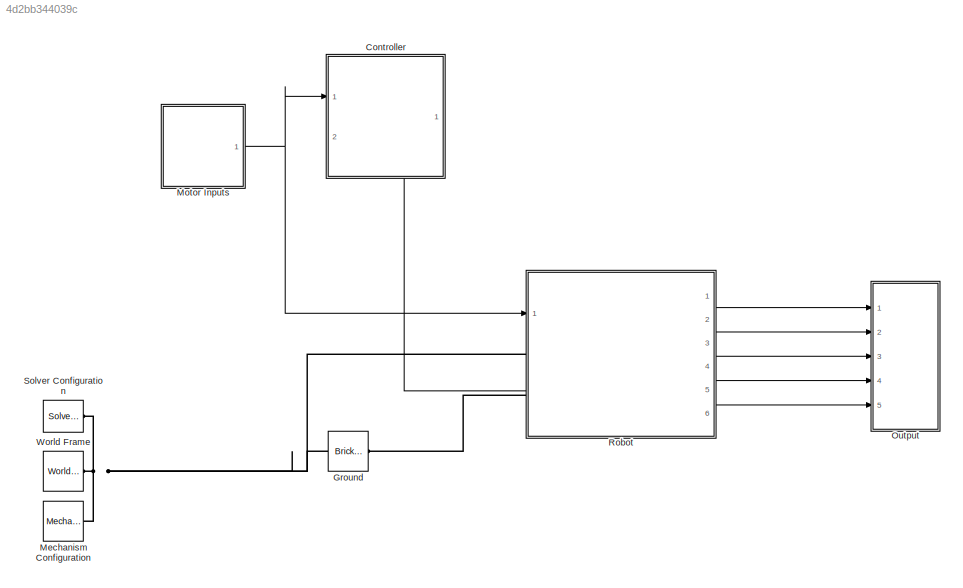
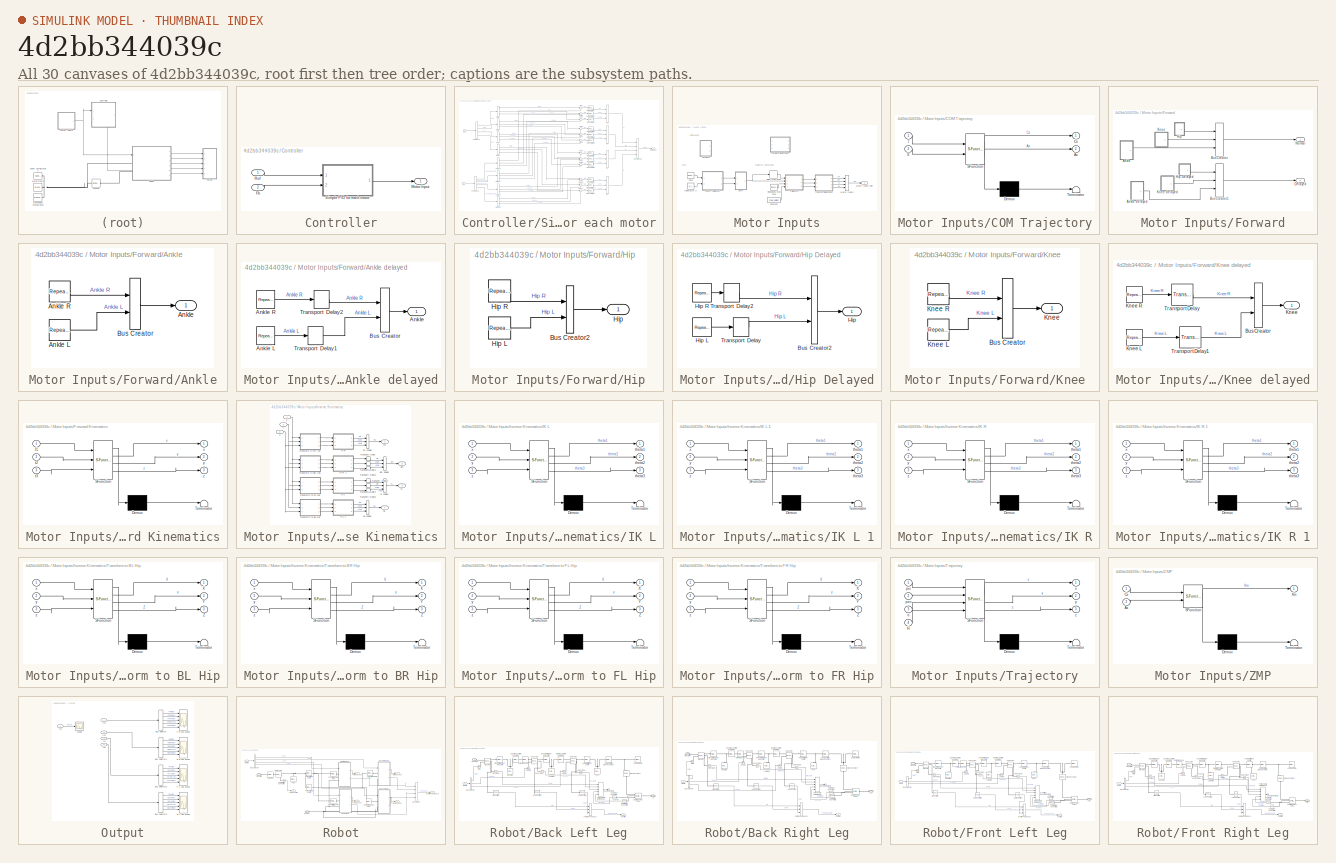
[diagram: thumbnail index - all 30 canvases of the model, root first then tree order]
MODEL slx_4d2bb344039c
KIND model
CONFIG AbsTol = auto
CONFIG EnableMultiTasking = on
CONFIG FixedStep = auto
CONFIG MaxStep = auto
CONFIG MinStep = auto
CONFIG PreLoadFcn = Parameters;
CONFIG RelTol = 1e-3
CONFIG SampleTimeConstraint = Unconstrained
CONFIG Solver = VariableStepAuto
CONFIG SolverName = VariableStepAuto
CONFIG StartTime = 0.0
CONFIG StopTime = 10.0
BLOCK [SubSystem] Controller
  Commented = on
  Ports = [2, 1]
  RequestExecContextInheritance = off
BLOCK [Inport] Controller/Fb
  Port = 2
BLOCK [Outport] Controller/Motor Input
BLOCK [Inport] Controller/Ref
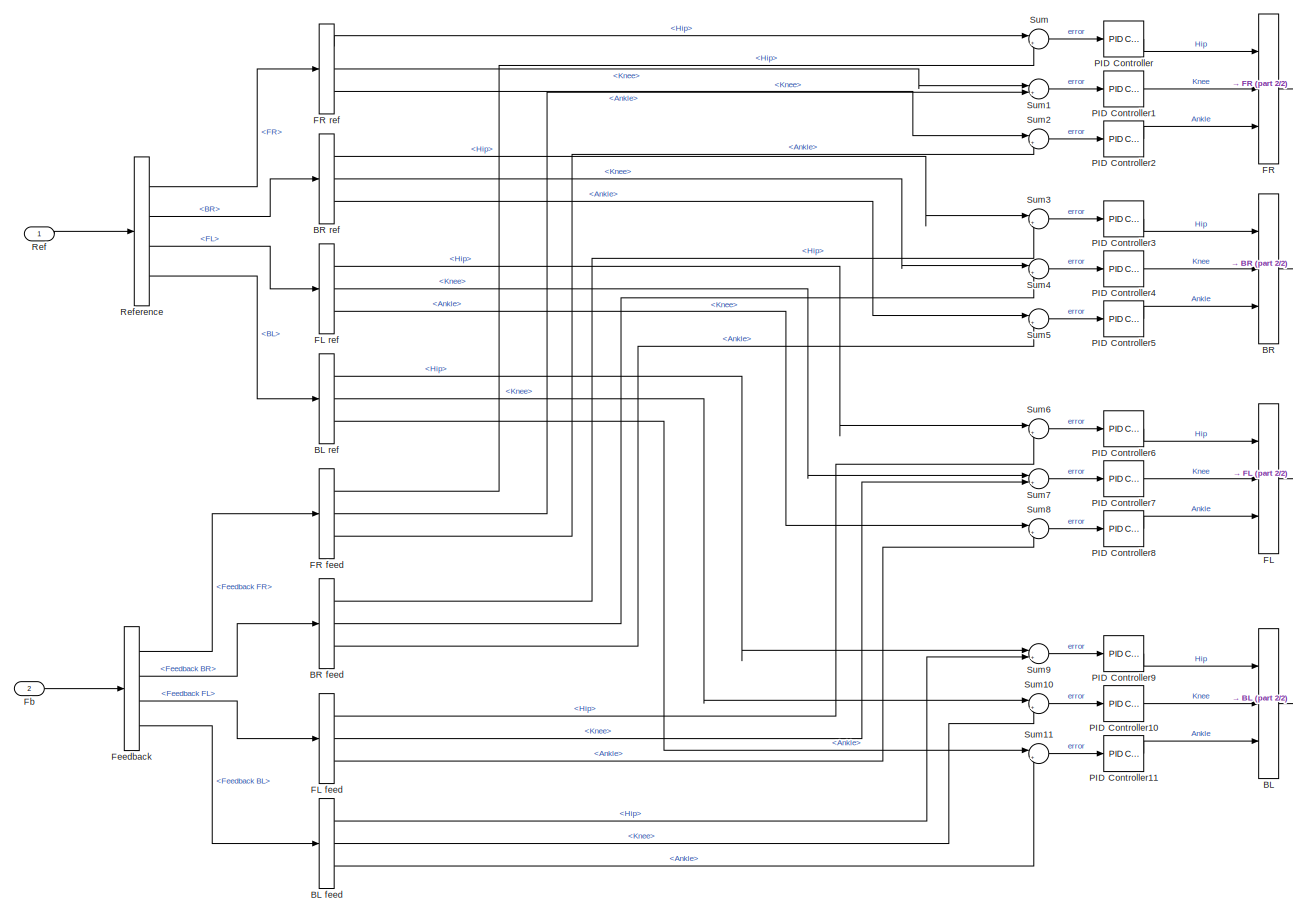
[diagram: Controller/Simple PID for each motor - part 1/2, most of the canvas]
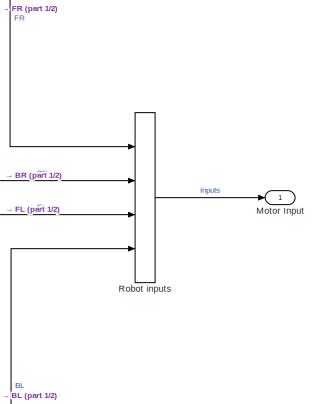
[diagram: Controller/Simple PID for each motor - part 2/2, middle right region]
BLOCK [SubSystem] Controller/Simple PID for each motor
  Ports = [2, 1]
  RequestExecContextInheritance = off
BLOCK [BusCreator] Controller/Simple PID for each motor/BL
  DisplayOption = bar
  InheritFromInputs = on
  Inputs = 3
  Ports = [3, 1]
BLOCK [BusSelector] Controller/Simple PID for each motor/BL feed
  OutputSignals = Hip,Knee,Ankle
  Ports = [1, 3]
BLOCK [BusSelector] Controller/Simple PID for each motor/BL ref
  OutputSignals = Hip,Knee,Ankle
  Ports = [1, 3]
BLOCK [BusCreator] Controller/Simple PID for each motor/BR
  DisplayOption = bar
  InheritFromInputs = on
  Inputs = 3
  Ports = [3, 1]
BLOCK [BusSelector] Controller/Simple PID for each motor/BR feed
  OutputSignals = Hip,Knee,Ankle
  Ports = [1, 3]
BLOCK [BusSelector] Controller/Simple PID for each motor/BR ref
  OutputSignals = Hip,Knee,Ankle
  Ports = [1, 3]
BLOCK [BusCreator] Controller/Simple PID for each motor/FL
  DisplayOption = bar
  InheritFromInputs = on
  Inputs = 3
  Ports = [3, 1]
BLOCK [BusSelector] Controller/Simple PID for each motor/FL feed
  OutputSignals = Hip,Knee,Ankle
  Ports = [1, 3]
BLOCK [BusSelector] Controller/Simple PID for each motor/FL ref
  OutputSignals = Hip,Knee,Ankle
  Ports = [1, 3]
BLOCK [BusCreator] Controller/Simple PID for each motor/FR
  DisplayOption = bar
  InheritFromInputs = on
  Inputs = 3
  Ports = [3, 1]
BLOCK [BusSelector] Controller/Simple PID for each motor/FR feed
  OutputSignals = Hip,Knee,Ankle
  Ports = [1, 3]
BLOCK [BusSelector] Controller/Simple PID for each motor/FR ref
  OutputSignals = Hip,Knee,Ankle
  Ports = [1, 3]
BLOCK [Inport] Controller/Simple PID for each motor/Fb
  Port = 2
BLOCK [BusSelector] Controller/Simple PID for each motor/Feedback
  OutputSignals = Feedback FR,Feedback BR,Feedback FL,Feedback BL
  Ports = [1, 4]
BLOCK [Outport] Controller/Simple PID for each motor/Motor Input
BLOCK [Reference] Controller/Simple PID for each motor/PID Controller  REF=simulink/Continuous/PID Controller
  Ports = [1, 1]
  SourceBlock = simulink/Continuous/PID Controller
  SourceProductBaseCode = SL
  SourceType = PID 1dof
BLOCK [Reference] Controller/Simple PID for each motor/PID Controller1  REF=simulink/Continuous/PID Controller
  Ports = [1, 1]
  SourceBlock = simulink/Continuous/PID Controller
  SourceProductBaseCode = SL
  SourceType = PID 1dof
BLOCK [Reference] Controller/Simple PID for each motor/PID Controller10  REF=simulink/Continuous/PID Controller
  Ports = [1, 1]
  SourceBlock = simulink/Continuous/PID Controller
  SourceProductBaseCode = SL
  SourceType = PID 1dof
BLOCK [Reference] Controller/Simple PID for each motor/PID Controller11  REF=simulink/Continuous/PID Controller
  Ports = [1, 1]
  SourceBlock = simulink/Continuous/PID Controller
  SourceProductBaseCode = SL
  SourceType = PID 1dof
BLOCK [Reference] Controller/Simple PID for each motor/PID Controller2  REF=simulink/Continuous/PID Controller
  Ports = [1, 1]
  SourceBlock = simulink/Continuous/PID Controller
  SourceProductBaseCode = SL
  SourceType = PID 1dof
BLOCK [Reference] Controller/Simple PID for each motor/PID Controller3  REF=simulink/Continuous/PID Controller
  Ports = [1, 1]
  SourceBlock = simulink/Continuous/PID Controller
  SourceProductBaseCode = SL
  SourceType = PID 1dof
BLOCK [Reference] Controller/Simple PID for each motor/PID Controller4  REF=simulink/Continuous/PID Controller
  Ports = [1, 1]
  SourceBlock = simulink/Continuous/PID Controller
  SourceProductBaseCode = SL
  SourceType = PID 1dof
BLOCK [Reference] Controller/Simple PID for each motor/PID Controller5  REF=simulink/Continuous/PID Controller
  Ports = [1, 1]
  SourceBlock = simulink/Continuous/PID Controller
  SourceProductBaseCode = SL
  SourceType = PID 1dof
BLOCK [Reference] Controller/Simple PID for each motor/PID Controller6  REF=simulink/Continuous/PID Controller
  Ports = [1, 1]
  SourceBlock = simulink/Continuous/PID Controller
  SourceProductBaseCode = SL
  SourceType = PID 1dof
BLOCK [Reference] Controller/Simple PID for each motor/PID Controller7  REF=simulink/Continuous/PID Controller
  Ports = [1, 1]
  SourceBlock = simulink/Continuous/PID Controller
  SourceProductBaseCode = SL
  SourceType = PID 1dof
BLOCK [Reference] Controller/Simple PID for each motor/PID Controller8  REF=simulink/Continuous/PID Controller
  Ports = [1, 1]
  SourceBlock = simulink/Continuous/PID Controller
  SourceProductBaseCode = SL
  SourceType = PID 1dof
BLOCK [Reference] Controller/Simple PID for each motor/PID Controller9  REF=simulink/Continuous/PID Controller
  Ports = [1, 1]
  SourceBlock = simulink/Continuous/PID Controller
  SourceProductBaseCode = SL
  SourceType = PID 1dof
BLOCK [Inport] Controller/Simple PID for each motor/Ref
BLOCK [BusSelector] Controller/Simple PID for each motor/Reference
  OutputSignals = FR,BR,FL,BL
  Ports = [1, 4]
BLOCK [BusCreator] Controller/Simple PID for each motor/Robot inputs
  DisplayOption = bar
  InheritFromInputs = on
  Inputs = 4
  Ports = [4, 1]
BLOCK [Sum] Controller/Simple PID for each motor/Sum
  Inputs = |+-
  Ports = [2, 1]
BLOCK [Sum] Controller/Simple PID for each motor/Sum1
  Inputs = |+-
  Ports = [2, 1]
BLOCK [Sum] Controller/Simple PID for each motor/Sum10
  Inputs = |+-
  Ports = [2, 1]
BLOCK [Sum] Controller/Simple PID for each motor/Sum11
  Inputs = |+-
  Ports = [2, 1]
BLOCK [Sum] Controller/Simple PID for each motor/Sum2
  Inputs = |+-
  Ports = [2, 1]
BLOCK [Sum] Controller/Simple PID for each motor/Sum3
  Inputs = |+-
  Ports = [2, 1]
BLOCK [Sum] Controller/Simple PID for each motor/Sum4
  Inputs = |+-
  Ports = [2, 1]
BLOCK [Sum] Controller/Simple PID for each motor/Sum5
  Inputs = |+-
  Ports = [2, 1]
BLOCK [Sum] Controller/Simple PID for each motor/Sum6
  Inputs = |+-
  Ports = [2, 1]
BLOCK [Sum] Controller/Simple PID for each motor/Sum7
  Inputs = |+-
  Ports = [2, 1]
BLOCK [Sum] Controller/Simple PID for each motor/Sum8
  Inputs = |+-
  Ports = [2, 1]
BLOCK [Sum] Controller/Simple PID for each motor/Sum9
  Inputs = |+-
  Ports = [2, 1]
BLOCK [Reference] Ground  REF=sm_lib/Body Elements/Brick Solid
  NameLocation = top
  Ports = [0, 0, 0, 0, 0, 1, 1]
  SourceBlock = sm_lib/Body Elements/Brick Solid
  SourceProductBaseCode = MS
  SourceType = Brick Solid
BLOCK [Reference] Mechanism Configuration  REF=sm_lib/Utilities/Mechanism
Configuration
  Ports = [0, 0, 0, 0, 0, 0, 1]
  SourceBlock = sm_lib/Utilities/Mechanism\nConfiguration
  SourceProductBaseCode = MS
  SourceType = Mechanism\nConfiguration
BLOCK [SubSystem] Motor Inputs
  Ports = [0, 1]
  RequestExecContextInheritance = off
BLOCK [SubSystem] Motor Inputs/COM Trajectory
  ErrorFcn = Stateflow.Translate.translate
  PermitHierarchicalResolution = ExplicitOnly
  Ports = [2, 2]
  RequestExecContextInheritance = off
  SFBlockType = MATLAB Function
  TreatAsAtomicUnit = on
BLOCK [Demux] Motor Inputs/COM Trajectory/ Demux 
  Outputs = 1
  Ports = [1, 1]
BLOCK [S-Function] Motor Inputs/COM Trajectory/ SFunction 
  EnableBusSupport = on
  FunctionName = sf_sfun
  PortCounts = [2 3]
  Ports = [2, 3]
  SFcnIsStateOwnerBlock = off
  SFunctionDeploymentMode = off
  Tag = Stateflow S-Function 4
BLOCK [Terminator] Motor Inputs/COM Trajectory/ Terminator 
BLOCK [Outport] Motor Inputs/COM Trajectory/Ax
  Port = 2
BLOCK [Outport] Motor Inputs/COM Trajectory/Cx
BLOCK [Inport] Motor Inputs/COM Trajectory/X
  Port = 2
BLOCK [Inport] Motor Inputs/COM Trajectory/t
BLOCK [Constant] Motor Inputs/Constant
  Value = step_height
BLOCK [Delay] Motor Inputs/Delay One Step
  DelayLength = 1
  InputPortMap = u0
  Ports = [1, 1]
BLOCK [SubSystem] Motor Inputs/Forward
  Commented = on
  Ports = [0, 2]
  RequestExecContextInheritance = off
BLOCK [SubSystem] Motor Inputs/Forward Kinematics
  Commented = on
  ErrorFcn = Stateflow.Translate.translate
  PermitHierarchicalResolution = ExplicitOnly
  Ports = [3, 3]
  RequestExecContextInheritance = off
  SFBlockType = MATLAB Function
  TreatAsAtomicUnit = on
BLOCK [Demux] Motor Inputs/Forward Kinematics/ Demux 
  Outputs = 1
  Ports = [1, 1]
BLOCK [S-Function] Motor Inputs/Forward Kinematics/ SFunction 
  EnableBusSupport = on
  FunctionName = sf_sfun
  PortCounts = [3 4]
  Ports = [3, 4]
  SFcnIsStateOwnerBlock = off
  SFunctionDeploymentMode = off
  Tag = Stateflow S-Function 12
BLOCK [Terminator] Motor Inputs/Forward Kinematics/ Terminator 
BLOCK [Inport] Motor Inputs/Forward Kinematics/t1
BLOCK [Inport] Motor Inputs/Forward Kinematics/t2
  Port = 2
BLOCK [Inport] Motor Inputs/Forward Kinematics/t3
  Port = 3
BLOCK [Outport] Motor Inputs/Forward Kinematics/x
BLOCK [Outport] Motor Inputs/Forward Kinematics/y
  Port = 2
BLOCK [Outport] Motor Inputs/Forward Kinematics/z
  Port = 3
BLOCK [SubSystem] Motor Inputs/Forward/Ankle
  Ports = [0, 1]
  RequestExecContextInheritance = off
BLOCK [SubSystem] Motor Inputs/Forward/Ankle delayed
  Ports = [0, 1]
  RequestExecContextInheritance = off
BLOCK [Outport] Motor Inputs/Forward/Ankle delayed/Ankle
BLOCK [Reference] Motor Inputs/Forward/Ankle delayed/Ankle L  REF=simulink/Sources/Repeating
Sequence
  Ports = [0, 1]
  SourceBlock = simulink/Sources/Repeating\nSequence
  SourceProductBaseCode = SL
  SourceType = Repeating table
BLOCK [Reference] Motor Inputs/Forward/Ankle delayed/Ankle R  REF=simulink/Sources/Repeating
Sequence
  Ports = [0, 1]
  SourceBlock = simulink/Sources/Repeating\nSequence
  SourceProductBaseCode = SL
  SourceType = Repeating table
BLOCK [BusCreator] Motor Inputs/Forward/Ankle delayed/Bus Creator
  DisplayOption = bar
  InheritFromInputs = on
  Inputs = 2
  Ports = [2, 1]
BLOCK [TransportDelay] Motor Inputs/Forward/Ankle delayed/Transport Delay1
  BufferSize = buffer
  DelayTime = gait_time/2
  InitialOutput = target3
  Ports = [1, 1]
BLOCK [TransportDelay] Motor Inputs/Forward/Ankle delayed/Transport Delay2
  BufferSize = buffer
  DelayTime = gait_time/2
  InitialOutput = target3r
  Ports = [1, 1]
BLOCK [Outport] Motor Inputs/Forward/Ankle/Ankle
BLOCK [Reference] Motor Inputs/Forward/Ankle/Ankle L  REF=simulink/Sources/Repeating
Sequence
  Ports = [0, 1]
  SourceBlock = simulink/Sources/Repeating\nSequence
  SourceProductBaseCode = SL
  SourceType = Repeating table
BLOCK [Reference] Motor Inputs/Forward/Ankle/Ankle R  REF=simulink/Sources/Repeating
Sequence
  Ports = [0, 1]
  SourceBlock = simulink/Sources/Repeating\nSequence
  SourceProductBaseCode = SL
  SourceType = Repeating table
BLOCK [BusCreator] Motor Inputs/Forward/Ankle/Bus Creator
  DisplayOption = bar
  InheritFromInputs = on
  Inputs = 2
  Ports = [2, 1]
BLOCK [BusCreator] Motor Inputs/Forward/Bus Creator
  DisplayOption = bar
  InheritFromInputs = on
  Inputs = 3
  Ports = [3, 1]
BLOCK [BusCreator] Motor Inputs/Forward/Bus Creator1
  DisplayOption = bar
  InheritFromInputs = on
  Inputs = 3
  Ports = [3, 1]
BLOCK [Outport] Motor Inputs/Forward/Delayed
  Port = 2
BLOCK [SubSystem] Motor Inputs/Forward/Hip
  Ports = [0, 1]
  RequestExecContextInheritance = off
BLOCK [SubSystem] Motor Inputs/Forward/Hip Delayed
  Ports = [0, 1]
  RequestExecContextInheritance = off
BLOCK [BusCreator] Motor Inputs/Forward/Hip Delayed/Bus Creator2
  DisplayOption = bar
  InheritFromInputs = on
  Inputs = 2
  Ports = [2, 1]
BLOCK [Outport] Motor Inputs/Forward/Hip Delayed/Hip
BLOCK [Reference] Motor Inputs/Forward/Hip Delayed/Hip L  REF=simulink/Sources/Repeating
Sequence
  Ports = [0, 1]
  SourceBlock = simulink/Sources/Repeating\nSequence
  SourceProductBaseCode = SL
  SourceType = Repeating table
BLOCK [Reference] Motor Inputs/Forward/Hip Delayed/Hip R  REF=simulink/Sources/Repeating
Sequence
  Ports = [0, 1]
  SourceBlock = simulink/Sources/Repeating\nSequence
  SourceProductBaseCode = SL
  SourceType = Repeating table
BLOCK [TransportDelay] Motor Inputs/Forward/Hip Delayed/Transport Delay
  BufferSize = buffer
  DelayTime = gait_time/2
  InitialOutput = target1
  Ports = [1, 1]
BLOCK [TransportDelay] Motor Inputs/Forward/Hip Delayed/Transport Delay2
  BufferSize = buffer
  DelayTime = gait_time/2
  InitialOutput = target1
  Ports = [1, 1]
BLOCK [BusCreator] Motor Inputs/Forward/Hip/Bus Creator2
  DisplayOption = bar
  InheritFromInputs = on
  Inputs = 2
  Ports = [2, 1]
BLOCK [Outport] Motor Inputs/Forward/Hip/Hip
BLOCK [Reference] Motor Inputs/Forward/Hip/Hip L  REF=simulink/Sources/Repeating
Sequence
  Ports = [0, 1]
  SourceBlock = simulink/Sources/Repeating\nSequence
  SourceProductBaseCode = SL
  SourceType = Repeating table
BLOCK [Reference] Motor Inputs/Forward/Hip/Hip R  REF=simulink/Sources/Repeating
Sequence
  Ports = [0, 1]
  SourceBlock = simulink/Sources/Repeating\nSequence
  SourceProductBaseCode = SL
  SourceType = Repeating table
BLOCK [SubSystem] Motor Inputs/Forward/Knee
  Ports = [0, 1]
  RequestExecContextInheritance = off
BLOCK [SubSystem] Motor Inputs/Forward/Knee delayed
  Ports = [0, 1]
  RequestExecContextInheritance = off
BLOCK [BusCreator] Motor Inputs/Forward/Knee delayed/Bus Creator
  DisplayOption = bar
  InheritFromInputs = on
  Inputs = 2
  Ports = [2, 1]
BLOCK [Outport] Motor Inputs/Forward/Knee delayed/Knee
BLOCK [Reference] Motor Inputs/Forward/Knee delayed/Knee L  REF=simulink/Sources/Repeating
Sequence
  Ports = [0, 1]
  SourceBlock = simulink/Sources/Repeating\nSequence
  SourceProductBaseCode = SL
  SourceType = Repeating table
BLOCK [Reference] Motor Inputs/Forward/Knee delayed/Knee R  REF=simulink/Sources/Repeating
Sequence
  Ports = [0, 1]
  SourceBlock = simulink/Sources/Repeating\nSequence
  SourceProductBaseCode = SL
  SourceType = Repeating table
BLOCK [TransportDelay] Motor Inputs/Forward/Knee delayed/Transport Delay
  BufferSize = buffer
  DelayTime = gait_time/2
  InitialOutput = target2r
  Ports = [1, 1]
BLOCK [TransportDelay] Motor Inputs/Forward/Knee delayed/Transport Delay1
  BufferSize = buffer
  DelayTime = gait_time/2
  InitialOutput = target2
  Ports = [1, 1]
BLOCK [BusCreator] Motor Inputs/Forward/Knee/Bus Creator
  DisplayOption = bar
  InheritFromInputs = on
  Inputs = 2
  Ports = [2, 1]
BLOCK [Outport] Motor Inputs/Forward/Knee/Knee
BLOCK [Reference] Motor Inputs/Forward/Knee/Knee L  REF=simulink/Sources/Repeating
Sequence
  Ports = [0, 1]
  SourceBlock = simulink/Sources/Repeating\nSequence
  SourceProductBaseCode = SL
  SourceType = Repeating table
BLOCK [Reference] Motor Inputs/Forward/Knee/Knee R  REF=simulink/Sources/Repeating
Sequence
  Ports = [0, 1]
  SourceBlock = simulink/Sources/Repeating\nSequence
  SourceProductBaseCode = SL
  SourceType = Repeating table
BLOCK [Outport] Motor Inputs/Forward/Normal
BLOCK [Constant] Motor Inputs/Initial COM X
  Value = Xc_i
BLOCK [SubSystem] Motor Inputs/Inverse Kinematics
  Ports = [3, 4]
  RequestExecContextInheritance = off
BLOCK [Outport] Motor Inputs/Inverse Kinematics/BL
  Port = 4
BLOCK [BusCreator] Motor Inputs/Inverse Kinematics/BL angles
  DisplayOption = bar
  InheritFromInputs = on
  Inputs = 3
  Ports = [3, 1]
BLOCK [Outport] Motor Inputs/Inverse Kinematics/BR
  Port = 2
BLOCK [BusCreator] Motor Inputs/Inverse Kinematics/BR angles
  DisplayOption = bar
  InheritFromInputs = on
  Inputs = 3
  Ports = [3, 1]
BLOCK [Outport] Motor Inputs/Inverse Kinematics/FL
  Port = 3
BLOCK [BusCreator] Motor Inputs/Inverse Kinematics/FL angles
  DisplayOption = bar
  InheritFromInputs = on
  Inputs = 3
  Ports = [3, 1]
BLOCK [Outport] Motor Inputs/Inverse Kinematics/FR
BLOCK [BusCreator] Motor Inputs/Inverse Kinematics/FR angles
  DisplayOption = bar
  InheritFromInputs = on
  Inputs = 3
  Ports = [3, 1]
BLOCK [SubSystem] Motor Inputs/Inverse Kinematics/IK L
  ErrorFcn = Stateflow.Translate.translate
  PermitHierarchicalResolution = ExplicitOnly
  Ports = [3, 3]
  RequestExecContextInheritance = off
  SFBlockType = MATLAB Function
  TreatAsAtomicUnit = on
BLOCK [SubSystem] Motor Inputs/Inverse Kinematics/IK L 1
  ErrorFcn = Stateflow.Translate.translate
  PermitHierarchicalResolution = ExplicitOnly
  Ports = [3, 3]
  RequestExecContextInheritance = off
  SFBlockType = MATLAB Function
  TreatAsAtomicUnit = on
BLOCK [Demux] Motor Inputs/Inverse Kinematics/IK L 1/ Demux 
  Outputs = 1
  Ports = [1, 1]
BLOCK [S-Function] Motor Inputs/Inverse Kinematics/IK L 1/ SFunction 
  EnableBusSupport = on
  FunctionName = sf_sfun
  PortCounts = [3 4]
  Ports = [3, 4]
  SFcnIsStateOwnerBlock = off
  SFunctionDeploymentMode = off
  Tag = Stateflow S-Function 10
BLOCK [Terminator] Motor Inputs/Inverse Kinematics/IK L 1/ Terminator 
BLOCK [Outport] Motor Inputs/Inverse Kinematics/IK L 1/theta1
BLOCK [Outport] Motor Inputs/Inverse Kinematics/IK L 1/theta2
  Port = 2
BLOCK [Outport] Motor Inputs/Inverse Kinematics/IK L 1/theta3
  Port = 3
BLOCK [Inport] Motor Inputs/Inverse Kinematics/IK L 1/x
BLOCK [Inport] Motor Inputs/Inverse Kinematics/IK L 1/y
  Port = 2
BLOCK [Inport] Motor Inputs/Inverse Kinematics/IK L 1/z
  Port = 3
BLOCK [Demux] Motor Inputs/Inverse Kinematics/IK L/ Demux 
  Outputs = 1
  Ports = [1, 1]
BLOCK [S-Function] Motor Inputs/Inverse Kinematics/IK L/ SFunction 
  EnableBusSupport = on
  FunctionName = sf_sfun
  PortCounts = [3 4]
  Ports = [3, 4]
  SFcnIsStateOwnerBlock = off
  SFunctionDeploymentMode = off
  Tag = Stateflow S-Function 7
BLOCK [Terminator] Motor Inputs/Inverse Kinematics/IK L/ Terminator 
BLOCK [Outport] Motor Inputs/Inverse Kinematics/IK L/theta1
BLOCK [Outport] Motor Inputs/Inverse Kinematics/IK L/theta2
  Port = 2
BLOCK [Outport] Motor Inputs/Inverse Kinematics/IK L/theta3
  Port = 3
BLOCK [Inport] Motor Inputs/Inverse Kinematics/IK L/x
BLOCK [Inport] Motor Inputs/Inverse Kinematics/IK L/y
  Port = 2
BLOCK [Inport] Motor Inputs/Inverse Kinematics/IK L/z
  Port = 3
BLOCK [SubSystem] Motor Inputs/Inverse Kinematics/IK R
  ErrorFcn = Stateflow.Translate.translate
  PermitHierarchicalResolution = ExplicitOnly
  Ports = [3, 3]
  RequestExecContextInheritance = off
  SFBlockType = MATLAB Function
  TreatAsAtomicUnit = on
BLOCK [SubSystem] Motor Inputs/Inverse Kinematics/IK R 1
  ErrorFcn = Stateflow.Translate.translate
  PermitHierarchicalResolution = ExplicitOnly
  Ports = [3, 3]
  RequestExecContextInheritance = off
  SFBlockType = MATLAB Function
  TreatAsAtomicUnit = on
BLOCK [Demux] Motor Inputs/Inverse Kinematics/IK R 1/ Demux 
  Outputs = 1
  Ports = [1, 1]
BLOCK [S-Function] Motor Inputs/Inverse Kinematics/IK R 1/ SFunction 
  EnableBusSupport = on
  FunctionName = sf_sfun
  PortCounts = [3 4]
  Ports = [3, 4]
  SFcnIsStateOwnerBlock = off
  SFunctionDeploymentMode = off
  Tag = Stateflow S-Function 8
BLOCK [Terminator] Motor Inputs/Inverse Kinematics/IK R 1/ Terminator 
BLOCK [Outport] Motor Inputs/Inverse Kinematics/IK R 1/theta1
BLOCK [Outport] Motor Inputs/Inverse Kinematics/IK R 1/theta2
  Port = 2
BLOCK [Outport] Motor Inputs/Inverse Kinematics/IK R 1/theta3
  Port = 3
BLOCK [Inport] Motor Inputs/Inverse Kinematics/IK R 1/x
BLOCK [Inport] Motor Inputs/Inverse Kinematics/IK R 1/y
  Port = 2
BLOCK [Inport] Motor Inputs/Inverse Kinematics/IK R 1/z
  Port = 3
BLOCK [Demux] Motor Inputs/Inverse Kinematics/IK R/ Demux 
  Outputs = 1
  Ports = [1, 1]
BLOCK [S-Function] Motor Inputs/Inverse Kinematics/IK R/ SFunction 
  EnableBusSupport = on
  FunctionName = sf_sfun
  PortCounts = [3 4]
  Ports = [3, 4]
  SFcnIsStateOwnerBlock = off
  SFunctionDeploymentMode = off
  Tag = Stateflow S-Function 1
BLOCK [Terminator] Motor Inputs/Inverse Kinematics/IK R/ Terminator 
BLOCK [Outport] Motor Inputs/Inverse Kinematics/IK R/theta1
BLOCK [Outport] Motor Inputs/Inverse Kinematics/IK R/theta2
  Port = 2
BLOCK [Outport] Motor Inputs/Inverse Kinematics/IK R/theta3
  Port = 3
BLOCK [Inport] Motor Inputs/Inverse Kinematics/IK R/x
BLOCK [Inport] Motor Inputs/Inverse Kinematics/IK R/y
  Port = 2
BLOCK [Inport] Motor Inputs/Inverse Kinematics/IK R/z
  Port = 3
BLOCK [SubSystem] Motor Inputs/Inverse Kinematics/Transform to BL Hip
  ErrorFcn = Stateflow.Translate.translate
  PermitHierarchicalResolution = ExplicitOnly
  Ports = [3, 3]
  RequestExecContextInheritance = off
  SFBlockType = MATLAB Function
  TreatAsAtomicUnit = on
BLOCK [Demux] Motor Inputs/Inverse Kinematics/Transform to BL Hip/ Demux 
  Outputs = 1
  Ports = [1, 1]
BLOCK [S-Function] Motor Inputs/Inverse Kinematics/Transform to BL Hip/ SFunction 
  EnableBusSupport = on
  FunctionName = sf_sfun
  PortCounts = [3 4]
  Ports = [3, 4]
  SFcnIsStateOwnerBlock = off
  SFunctionDeploymentMode = off
  Tag = Stateflow S-Function 11
BLOCK [Terminator] Motor Inputs/Inverse Kinematics/Transform to BL Hip/ Terminator 
BLOCK [Outport] Motor Inputs/Inverse Kinematics/Transform to BL Hip/X
BLOCK [Outport] Motor Inputs/Inverse Kinematics/Transform to BL Hip/Y
  Port = 2
BLOCK [Outport] Motor Inputs/Inverse Kinematics/Transform to BL Hip/Z
  Port = 3
BLOCK [Inport] Motor Inputs/Inverse Kinematics/Transform to BL Hip/x
BLOCK [Inport] Motor Inputs/Inverse Kinematics/Transform to BL Hip/y
  Port = 2
BLOCK [Inport] Motor Inputs/Inverse Kinematics/Transform to BL Hip/z
  Port = 3
BLOCK [SubSystem] Motor Inputs/Inverse Kinematics/Transform to BR Hip
  ErrorFcn = Stateflow.Translate.translate
  PermitHierarchicalResolution = ExplicitOnly
  Ports = [3, 3]
  RequestExecContextInheritance = off
  SFBlockType = MATLAB Function
  TreatAsAtomicUnit = on
BLOCK [Demux] Motor Inputs/Inverse Kinematics/Transform to BR Hip/ Demux 
  Outputs = 1
  Ports = [1, 1]
BLOCK [S-Function] Motor Inputs/Inverse Kinematics/Transform to BR Hip/ SFunction 
  EnableBusSupport = on
  FunctionName = sf_sfun
  PortCounts = [3 4]
  Ports = [3, 4]
  SFcnIsStateOwnerBlock = off
  SFunctionDeploymentMode = off
  Tag = Stateflow S-Function 9
BLOCK [Terminator] Motor Inputs/Inverse Kinematics/Transform to BR Hip/ Terminator 
BLOCK [Outport] Motor Inputs/Inverse Kinematics/Transform to BR Hip/X
BLOCK [Outport] Motor Inputs/Inverse Kinematics/Transform to BR Hip/Y
  Port = 2
BLOCK [Outport] Motor Inputs/Inverse Kinematics/Transform to BR Hip/Z
  Port = 3
BLOCK [Inport] Motor Inputs/Inverse Kinematics/Transform to BR Hip/x
BLOCK [Inport] Motor Inputs/Inverse Kinematics/Transform to BR Hip/y
  Port = 2
BLOCK [Inport] Motor Inputs/Inverse Kinematics/Transform to BR Hip/z
  Port = 3
BLOCK [SubSystem] Motor Inputs/Inverse Kinematics/Transform to FL Hip
  ErrorFcn = Stateflow.Translate.translate
  PermitHierarchicalResolution = ExplicitOnly
  Ports = [3, 3]
  RequestExecContextInheritance = off
  SFBlockType = MATLAB Function
  TreatAsAtomicUnit = on
BLOCK [Demux] Motor Inputs/Inverse Kinematics/Transform to FL Hip/ Demux 
  Outputs = 1
  Ports = [1, 1]
BLOCK [S-Function] Motor Inputs/Inverse Kinematics/Transform to FL Hip/ SFunction 
  EnableBusSupport = on
  FunctionName = sf_sfun
  PortCounts = [3 4]
  Ports = [3, 4]
  SFcnIsStateOwnerBlock = off
  SFunctionDeploymentMode = off
  Tag = Stateflow S-Function 6
BLOCK [Terminator] Motor Inputs/Inverse Kinematics/Transform to FL Hip/ Terminator 
BLOCK [Outport] Motor Inputs/Inverse Kinematics/Transform to FL Hip/X
BLOCK [Outport] Motor Inputs/Inverse Kinematics/Transform to FL Hip/Y
  Port = 2
BLOCK [Outport] Motor Inputs/Inverse Kinematics/Transform to FL Hip/Z
  Port = 3
BLOCK [Inport] Motor Inputs/Inverse Kinematics/Transform to FL Hip/x
BLOCK [Inport] Motor Inputs/Inverse Kinematics/Transform to FL Hip/y
  Port = 2
BLOCK [Inport] Motor Inputs/Inverse Kinematics/Transform to FL Hip/z
  Port = 3
BLOCK [SubSystem] Motor Inputs/Inverse Kinematics/Transform to FR Hip
  ErrorFcn = Stateflow.Translate.translate
  PermitHierarchicalResolution = ExplicitOnly
  Ports = [3, 3]
  RequestExecContextInheritance = off
  SFBlockType = MATLAB Function
  TreatAsAtomicUnit = on
BLOCK [Demux] Motor Inputs/Inverse Kinematics/Transform to FR Hip/ Demux 
  Outputs = 1
  Ports = [1, 1]
BLOCK [S-Function] Motor Inputs/Inverse Kinematics/Transform to FR Hip/ SFunction 
  EnableBusSupport = on
  FunctionName = sf_sfun
  PortCounts = [3 4]
  Ports = [3, 4]
  SFcnIsStateOwnerBlock = off
  SFunctionDeploymentMode = off
  Tag = Stateflow S-Function 5
BLOCK [Terminator] Motor Inputs/Inverse Kinematics/Transform to FR Hip/ Terminator 
BLOCK [Outport] Motor Inputs/Inverse Kinematics/Transform to FR Hip/X
BLOCK [Outport] Motor Inputs/Inverse Kinematics/Transform to FR Hip/Y
  Port = 2
BLOCK [Outport] Motor Inputs/Inverse Kinematics/Transform to FR Hip/Z
  Port = 3
BLOCK [Inport] Motor Inputs/Inverse Kinematics/Transform to FR Hip/x
BLOCK [Inport] Motor Inputs/Inverse Kinematics/Transform to FR Hip/y
  Port = 2
BLOCK [Inport] Motor Inputs/Inverse Kinematics/Transform to FR Hip/z
  Port = 3
BLOCK [TransportDelay] Motor Inputs/Inverse Kinematics/Transport Delay
  DelayTime = step_time
  InitialOutput = target1
  Ports = [1, 1]
BLOCK [TransportDelay] Motor Inputs/Inverse Kinematics/Transport Delay1
  DelayTime = step_time
  InitialOutput = target2r
  Ports = [1, 1]
BLOCK [TransportDelay] Motor Inputs/Inverse Kinematics/Transport Delay2
  DelayTime = step_time
  InitialOutput = target3r
  Ports = [1, 1]
BLOCK [TransportDelay] Motor Inputs/Inverse Kinematics/Transport Delay3
  DelayTime = step_time
  InitialOutput = target1
  Ports = [1, 1]
BLOCK [TransportDelay] Motor Inputs/Inverse Kinematics/Transport Delay4
  DelayTime = step_time
  InitialOutput = target2
  Ports = [1, 1]
BLOCK [TransportDelay] Motor Inputs/Inverse Kinematics/Transport Delay5
  DelayTime = step_time
  InitialOutput = target3
  Ports = [1, 1]
BLOCK [Inport] Motor Inputs/Inverse Kinematics/x
BLOCK [Inport] Motor Inputs/Inverse Kinematics/y
  Port = 2
BLOCK [Inport] Motor Inputs/Inverse Kinematics/z
  Port = 3
BLOCK [BusCreator] Motor Inputs/Motor Inputs
  DisplayOption = bar
  InheritFromInputs = on
  Inputs = 4
  Ports = [4, 1]
BLOCK [Outport] Motor Inputs/Motor Inputs Ref
BLOCK [Reference] Motor Inputs/Repeating step time  REF=simulink/Sources/Repeating
Sequence
  Ports = [0, 1]
  SourceBlock = simulink/Sources/Repeating\nSequence
  SourceProductBaseCode = SL
  SourceType = Repeating table
BLOCK [Reference] Motor Inputs/Time  REF=simulink/Sources/Repeating
Sequence
Stair
  Ports = [0, 1]
  SourceBlock = simulink/Sources/Repeating\nSequence\nStair
  SourceProductBaseCode = SL
  SourceType = Repeating Sequence Stair
BLOCK [SubSystem] Motor Inputs/Trajectory
  ErrorFcn = Stateflow.Translate.translate
  PermitHierarchicalResolution = ExplicitOnly
  Ports = [4, 3]
  RequestExecContextInheritance = off
  SFBlockType = MATLAB Function
  TreatAsAtomicUnit = on
BLOCK [Demux] Motor Inputs/Trajectory/ Demux 
  Outputs = 1
  Ports = [1, 1]
BLOCK [S-Function] Motor Inputs/Trajectory/ SFunction 
  EnableBusSupport = on
  FunctionName = sf_sfun
  PortCounts = [4 4]
  Ports = [4, 4]
  SFcnIsStateOwnerBlock = off
  SFunctionDeploymentMode = off
  Tag = Stateflow S-Function 2
BLOCK [Terminator] Motor Inputs/Trajectory/ Terminator 
BLOCK [Inport] Motor Inputs/Trajectory/H
  Port = 4
BLOCK [Inport] Motor Inputs/Trajectory/pxi
BLOCK [Inport] Motor Inputs/Trajectory/pxn
  Port = 2
BLOCK [Inport] Motor Inputs/Trajectory/ti
  Port = 3
BLOCK [Outport] Motor Inputs/Trajectory/x
BLOCK [Outport] Motor Inputs/Trajectory/y
  Port = 2
BLOCK [Outport] Motor Inputs/Trajectory/z
  Port = 3
BLOCK [SubSystem] Motor Inputs/ZMP
  ErrorFcn = Stateflow.Translate.translate
  PermitHierarchicalResolution = ExplicitOnly
  Ports = [2, 1]
  RequestExecContextInheritance = off
  SFBlockType = MATLAB Function
  TreatAsAtomicUnit = on
BLOCK [Demux] Motor Inputs/ZMP/ Demux 
  Outputs = 1
  Ports = [1, 1]
BLOCK [S-Function] Motor Inputs/ZMP/ SFunction 
  EnableBusSupport = on
  FunctionName = sf_sfun
  PortCounts = [2 2]
  Ports = [2, 2]
  SFcnIsStateOwnerBlock = off
  SFunctionDeploymentMode = off
  Tag = Stateflow S-Function 3
BLOCK [Terminator] Motor Inputs/ZMP/ Terminator 
BLOCK [Inport] Motor Inputs/ZMP/Ax
  Port = 2
BLOCK [Inport] Motor Inputs/ZMP/Cx
BLOCK [Outport] Motor Inputs/ZMP/Xm
BLOCK [SubSystem] Output
  Ports = [5]
  RequestExecContextInheritance = off
BLOCK [Scope] Output/B L Leg Scope
  Floating = off
  NumInputPorts = 5
  Ports = [5]
  ScopeSpecificationString = Simulink.scopes.TimeScopeBlockCfg('CurrentConfiguration', extmgr.ConfigurationSet(extmgr.Configuration('Core','General UI',true),extmgr.Configuration('Core','Source UI',true),extmgr.Configuration('Sources','WiredSimulink',true,'DataLoggingVariableName','ScopeData4'),extmgr.Configuration('Visuals','Time Domain',true,'SerializedDisplays',{struct('MinYLimReal','-1.9831','MaxYLimReal','2.33218','YLabe...<+1406ch>
BLOCK [Scope] Output/B R Leg Scope
  Floating = off
  NumInputPorts = 5
  Ports = [5]
  ScopeSpecificationString = Simulink.scopes.TimeScopeBlockCfg('CurrentConfiguration', extmgr.ConfigurationSet(extmgr.Configuration('Core','General UI',true),extmgr.Configuration('Core','Source UI',true),extmgr.Configuration('Sources','WiredSimulink',true,'DataLoggingVariableName','ScopeData2'),extmgr.Configuration('Visuals','Time Domain',true,'SerializedDisplays',{struct('MinYLimReal','-1.9831','MaxYLimReal','2.33218','YLabe...<+1406ch>
BLOCK [BusSelector] Output/Bus Selector
  OutputSignals = Torques & Force.F R Hip,Torques & Force.F R Knee,Torques & Force.F R Ankle,Torques & Force.F R Force,Torques & Force.F R Friction
  Ports = [1, 5]
BLOCK [BusSelector] Output/Bus Selector1
  OutputSignals = Torques & Force.B R Hip,Torques & Force.B R Knee,Torques & Force.B R Ankle,Torques & Force.B R Force,Torques & Force.B R Friction
  Ports = [1, 5]
BLOCK [BusSelector] Output/Bus Selector2
  OutputSignals = Torques & Force.F L Hip,Torques & Force.F L Knee,Torques & Force.F L Ankle,Torques & Force.F L Force,Torques & Force.F L Friction
  Ports = [1, 5]
BLOCK [BusSelector] Output/Bus Selector3
  OutputSignals = Torques & Force.B L Hip,Torques & Force.B L Knee,Torques & Force.B L Ankle,Torques & Force.B L Force,Torques & Force.B L Friction
  Ports = [1, 5]
BLOCK [Scope] Output/F L Leg Scope
  Floating = off
  NumInputPorts = 5
  Ports = [5]
  ScopeSpecificationString = Simulink.scopes.TimeScopeBlockCfg('CurrentConfiguration', extmgr.ConfigurationSet(extmgr.Configuration('Core','General UI',true),extmgr.Configuration('Core','Source UI',true),extmgr.Configuration('Sources','WiredSimulink',true,'DataLoggingVariableName','ScopeData3'),extmgr.Configuration('Visuals','Time Domain',true,'SerializedDisplays',{struct('MinYLimReal','-1.9831','MaxYLimReal','2.33218','YLabe...<+1385ch>
BLOCK [Scope] Output/F R Leg Scope
  Floating = off
  NumInputPorts = 5
  Ports = [5]
  ScopeSpecificationString = Simulink.scopes.TimeScopeBlockCfg('CurrentConfiguration', extmgr.ConfigurationSet(extmgr.Configuration('Core','General UI',true),extmgr.Configuration('Core','Source UI',true),extmgr.Configuration('Sources','WiredSimulink',true),extmgr.Configuration('Visuals','Time Domain',true,'SerializedDisplays',{struct('MinYLimReal','-1.9831','MaxYLimReal','2.33218','YLabelReal','','MinYLimMag','0.00000','MaxYL...<+1346ch>
BLOCK [Inport] Output/In1
  Port = 2
BLOCK [Inport] Output/In2
BLOCK [Inport] Output/In3
  Port = 3
BLOCK [Inport] Output/In4
  Port = 4
BLOCK [Inport] Output/In5
  Port = 5
BLOCK [Scope] Output/Scope
  Floating = off
  NumInputPorts = 1
  Ports = [1]
  ScopeSpecificationString = Simulink.scopes.TimeScopeBlockCfg('CurrentConfiguration', extmgr.ConfigurationSet(extmgr.Configuration('Core','General UI',true),extmgr.Configuration('Core','Source UI',true),extmgr.Configuration('Sources','WiredSimulink',true,'DataLoggingVariableName','ScopeData1'),extmgr.Configuration('Visuals','Time Domain',true),extmgr.Configuration('Tools','Plot Navigation',true),extmgr.Configuration('Tools',...<+40ch>
BLOCK [SubSystem] Robot
  PortSchema = {"entries":[{"content":{"sides":[{"content":{"connectorIds":["In1","LConn1","LConn2"]},"type":"ConnectorPlacement.EquallySpacedRectSide","uuid":"4635b272-c60d-4014-ab6c-106026f55e73"},{"content":{"connectorIds":["Out1","Out2","Out3","Out4","Out5"],"side":"RIGHT"},"type":"ConnectorPlacement.EquallySpacedRectSide","uuid":"ef84d230-707b-4f1f-8f8a-5325fbe6d1ad"},{"content":{"connectorIds":["Out6"],"si...<+294ch>
  Ports = [1, 6, 0, 0, 0, 2]
  RequestExecContextInheritance = off
BLOCK [Reference] Robot/6-DOF Joint  REF=sm_lib/Joints/6-DOF Joint
  Ports = [0, 0, 0, 0, 0, 1, 2]
  SourceBlock = sm_lib/Joints/6-DOF Joint
  SourceProductBaseCode = MS
  SourceType = 6-DOF Joint
BLOCK [Reference] Robot/B Centre to B L Hip Joint  REF=sm_lib/Frames and
Transforms/Rigid
Transform
  Ports = [0, 0, 0, 0, 0, 1, 1]
  SourceBlock = sm_lib/Frames and\nTransforms/Rigid\nTransform
  SourceProductBaseCode = MS
  SourceType = Rigid\nTransform
BLOCK [Reference] Robot/B Centre to B R Hip Joint  REF=sm_lib/Frames and
Transforms/Rigid
Transform
  Ports = [0, 0, 0, 0, 0, 1, 1]
  SourceBlock = sm_lib/Frames and\nTransforms/Rigid\nTransform
  SourceProductBaseCode = MS
  SourceType = Rigid\nTransform
BLOCK [Outport] Robot/B L leg scope
  Port = 5
BLOCK [Outport] Robot/B R leg scope
  Port = 3
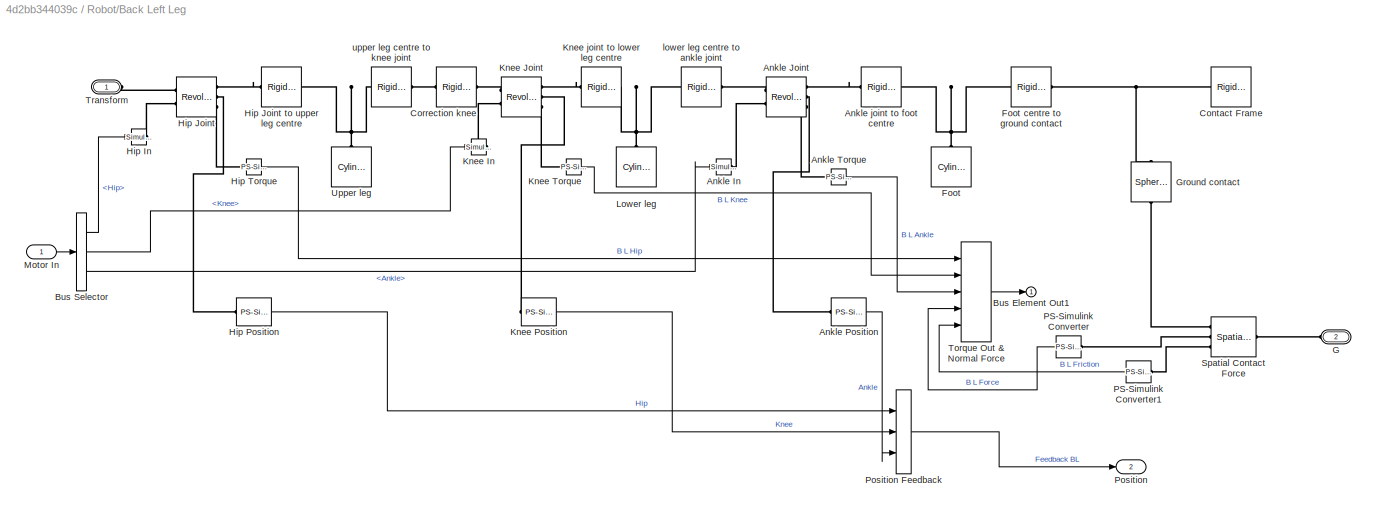
BLOCK [SubSystem] Robot/Back Left Leg
  Ports = [1, 2, 0, 0, 0, 2]
  RequestExecContextInheritance = off
BLOCK [Reference] Robot/Back Left Leg/Ankle In  REF=nesl_utility/Simulink-PS
Converter
  Ports = [1, 0, 0, 0, 0, 0, 1]
  SourceBlock = nesl_utility/Simulink-PS\nConverter
  SourceProductBaseCode = SS
  SourceType = Simulink-PS\nConverter
BLOCK [Reference] Robot/Back Left Leg/Ankle Joint  REF=sm_lib/Joints/Revolute Joint
  Ports = [0, 0, 0, 0, 0, 2, 3]
  SourceBlock = sm_lib/Joints/Revolute Joint
  SourceProductBaseCode = MS
  SourceType = Revolute Joint
BLOCK [Reference] Robot/Back Left Leg/Ankle Position  REF=nesl_utility/PS-Simulink
Converter
  Ports = [0, 1, 0, 0, 0, 1]
  SourceBlock = nesl_utility/PS-Simulink\nConverter
  SourceProductBaseCode = SS
  SourceType = PS-Simulink\nConverter
BLOCK [Reference] Robot/Back Left Leg/Ankle Torque  REF=nesl_utility/PS-Simulink
Converter
  Ports = [0, 1, 0, 0, 0, 1]
  SourceBlock = nesl_utility/PS-Simulink\nConverter
  SourceProductBaseCode = SS
  SourceType = PS-Simulink\nConverter
BLOCK [Reference] Robot/Back Left Leg/Ankle joint to foot centre  REF=sm_lib/Frames and
Transforms/Rigid
Transform
  Ports = [0, 0, 0, 0, 0, 1, 1]
  SourceBlock = sm_lib/Frames and\nTransforms/Rigid\nTransform
  SourceProductBaseCode = MS
  SourceType = Rigid\nTransform
BLOCK [Outport] Robot/Back Left Leg/Bus Element Out1
BLOCK [BusSelector] Robot/Back Left Leg/Bus Selector
  OutputSignals = Hip,Knee,Ankle
  Ports = [1, 3]
BLOCK [Reference] Robot/Back Left Leg/Contact Frame  REF=sm_lib/Frames and
Transforms/Rigid
Transform
  Commented = on
  Ports = [0, 0, 0, 0, 0, 1, 1]
  SourceBlock = sm_lib/Frames and\nTransforms/Rigid\nTransform
  SourceProductBaseCode = MS
  SourceType = Rigid\nTransform
BLOCK [Reference] Robot/Back Left Leg/Correction knee  REF=sm_lib/Frames and
Transforms/Rigid
Transform
  Ports = [0, 0, 0, 0, 0, 1, 1]
  SourceBlock = sm_lib/Frames and\nTransforms/Rigid\nTransform
  SourceProductBaseCode = MS
  SourceType = Rigid\nTransform
BLOCK [Reference] Robot/Back Left Leg/Foot  REF=sm_lib/Body Elements/Cylindrical Solid
  NameLocation = right
  Ports = [0, 0, 0, 0, 0, 0, 1]
  SourceBlock = sm_lib/Body Elements/Cylindrical Solid
  SourceProductBaseCode = MS
  SourceType = Cylindrical Solid
BLOCK [Reference] Robot/Back Left Leg/Foot centre to ground contact  REF=sm_lib/Frames and
Transforms/Rigid
Transform
  Ports = [0, 0, 0, 0, 0, 1, 1]
  SourceBlock = sm_lib/Frames and\nTransforms/Rigid\nTransform
  SourceProductBaseCode = MS
  SourceType = Rigid\nTransform
BLOCK [PMIOPort] Robot/Back Left Leg/G
  Port = 2
  Side = Left
BLOCK [Reference] Robot/Back Left Leg/Ground contact  REF=sm_lib/Body Elements/Spherical Solid
  NameLocation = right
  Ports = [0, 0, 0, 0, 0, 1, 1]
  SourceBlock = sm_lib/Body Elements/Spherical Solid
  SourceProductBaseCode = MS
  SourceType = Spherical Solid
BLOCK [Reference] Robot/Back Left Leg/Hip In  REF=nesl_utility/Simulink-PS
Converter
  Ports = [1, 0, 0, 0, 0, 0, 1]
  SourceBlock = nesl_utility/Simulink-PS\nConverter
  SourceProductBaseCode = SS
  SourceType = Simulink-PS\nConverter
BLOCK [Reference] Robot/Back Left Leg/Hip Joint  REF=sm_lib/Joints/Revolute Joint
  Ports = [0, 0, 0, 0, 0, 2, 3]
  SourceBlock = sm_lib/Joints/Revolute Joint
  SourceProductBaseCode = MS
  SourceType = Revolute Joint
BLOCK [Reference] Robot/Back Left Leg/Hip Joint to upper leg centre  REF=sm_lib/Frames and
Transforms/Rigid
Transform
  Ports = [0, 0, 0, 0, 0, 1, 1]
  SourceBlock = sm_lib/Frames and\nTransforms/Rigid\nTransform
  SourceProductBaseCode = MS
  SourceType = Rigid\nTransform
BLOCK [Reference] Robot/Back Left Leg/Hip Position  REF=nesl_utility/PS-Simulink
Converter
  Ports = [0, 1, 0, 0, 0, 1]
  SourceBlock = nesl_utility/PS-Simulink\nConverter
  SourceProductBaseCode = SS
  SourceType = PS-Simulink\nConverter
BLOCK [Reference] Robot/Back Left Leg/Hip Torque  REF=nesl_utility/PS-Simulink
Converter
  Ports = [0, 1, 0, 0, 0, 1]
  SourceBlock = nesl_utility/PS-Simulink\nConverter
  SourceProductBaseCode = SS
  SourceType = PS-Simulink\nConverter
BLOCK [Reference] Robot/Back Left Leg/Knee In  REF=nesl_utility/Simulink-PS
Converter
  Ports = [1, 0, 0, 0, 0, 0, 1]
  SourceBlock = nesl_utility/Simulink-PS\nConverter
  SourceProductBaseCode = SS
  SourceType = Simulink-PS\nConverter
BLOCK [Reference] Robot/Back Left Leg/Knee Joint  REF=sm_lib/Joints/Revolute Joint
  Ports = [0, 0, 0, 0, 0, 2, 3]
  SourceBlock = sm_lib/Joints/Revolute Joint
  SourceProductBaseCode = MS
  SourceType = Revolute Joint
BLOCK [Reference] Robot/Back Left Leg/Knee Position  REF=nesl_utility/PS-Simulink
Converter
  Ports = [0, 1, 0, 0, 0, 1]
  SourceBlock = nesl_utility/PS-Simulink\nConverter
  SourceProductBaseCode = SS
  SourceType = PS-Simulink\nConverter
BLOCK [Reference] Robot/Back Left Leg/Knee Torque  REF=nesl_utility/PS-Simulink
Converter
  Ports = [0, 1, 0, 0, 0, 1]
  SourceBlock = nesl_utility/PS-Simulink\nConverter
  SourceProductBaseCode = SS
  SourceType = PS-Simulink\nConverter
BLOCK [Reference] Robot/Back Left Leg/Knee joint to lower leg centre  REF=sm_lib/Frames and
Transforms/Rigid
Transform
  Ports = [0, 0, 0, 0, 0, 1, 1]
  SourceBlock = sm_lib/Frames and\nTransforms/Rigid\nTransform
  SourceProductBaseCode = MS
  SourceType = Rigid\nTransform
BLOCK [Reference] Robot/Back Left Leg/Lower leg  REF=sm_lib/Body Elements/Cylindrical Solid
  NameLocation = right
  Ports = [0, 0, 0, 0, 0, 0, 1]
  SourceBlock = sm_lib/Body Elements/Cylindrical Solid
  SourceProductBaseCode = MS
  SourceType = Cylindrical Solid
BLOCK [Inport] Robot/Back Left Leg/Motor In
BLOCK [Reference] Robot/Back Left Leg/PS-Simulink Converter  REF=nesl_utility/PS-Simulink
Converter
  Ports = [0, 1, 0, 0, 0, 1]
  SourceBlock = nesl_utility/PS-Simulink\nConverter
  SourceProductBaseCode = SS
  SourceType = PS-Simulink\nConverter
BLOCK [Reference] Robot/Back Left Leg/PS-Simulink Converter1  REF=nesl_utility/PS-Simulink
Converter
  Ports = [0, 1, 0, 0, 0, 1]
  SourceBlock = nesl_utility/PS-Simulink\nConverter
  SourceProductBaseCode = SS
  SourceType = PS-Simulink\nConverter
BLOCK [Outport] Robot/Back Left Leg/Position
  Port = 2
BLOCK [BusCreator] Robot/Back Left Leg/Position Feedback
  DisplayOption = bar
  InheritFromInputs = on
  Inputs = 3
  Ports = [3, 1]
BLOCK [Reference] Robot/Back Left Leg/Spatial Contact Force  REF=sm_lib/Forces and
Torques/Spatial
Contact Force
  Ports = [0, 0, 0, 0, 0, 1, 3]
  SourceBlock = sm_lib/Forces and\nTorques/Spatial\nContact Force
  SourceProductBaseCode = MS
  SourceType = Spatial\nContact Force
BLOCK [BusCreator] Robot/Back Left Leg/Torque Out & Normal Force
  DisplayOption = bar
  InheritFromInputs = on
  Inputs = 5
  Ports = [5, 1]
BLOCK [PMIOPort] Robot/Back Left Leg/Transform
  Side = Left
BLOCK [Reference] Robot/Back Left Leg/Upper leg  REF=sm_lib/Body Elements/Cylindrical Solid
  NameLocation = right
  Ports = [0, 0, 0, 0, 0, 0, 1]
  SourceBlock = sm_lib/Body Elements/Cylindrical Solid
  SourceProductBaseCode = MS
  SourceType = Cylindrical Solid
BLOCK [Reference] Robot/Back Left Leg/lower leg centre to ankle joint  REF=sm_lib/Frames and
Transforms/Rigid
Transform
  Ports = [0, 0, 0, 0, 0, 1, 1]
  SourceBlock = sm_lib/Frames and\nTransforms/Rigid\nTransform
  SourceProductBaseCode = MS
  SourceType = Rigid\nTransform
BLOCK [Reference] Robot/Back Left Leg/upper leg centre to knee joint  REF=sm_lib/Frames and
Transforms/Rigid
Transform
  Ports = [0, 0, 0, 0, 0, 1, 1]
  SourceBlock = sm_lib/Frames and\nTransforms/Rigid\nTransform
  SourceProductBaseCode = MS
  SourceType = Rigid\nTransform
BLOCK [SubSystem] Robot/Back Right Leg
  Ports = [1, 2, 0, 0, 0, 2]
  RequestExecContextInheritance = off
BLOCK [Reference] Robot/Back Right Leg/Ankle In  REF=nesl_utility/Simulink-PS
Converter
  Ports = [1, 0, 0, 0, 0, 0, 1]
  SourceBlock = nesl_utility/Simulink-PS\nConverter
  SourceProductBaseCode = SS
  SourceType = Simulink-PS\nConverter
BLOCK [Reference] Robot/Back Right Leg/Ankle Joint  REF=sm_lib/Joints/Revolute Joint
  Ports = [0, 0, 0, 0, 0, 2, 3]
  SourceBlock = sm_lib/Joints/Revolute Joint
  SourceProductBaseCode = MS
  SourceType = Revolute Joint
BLOCK [Reference] Robot/Back Right Leg/Ankle Position  REF=nesl_utility/PS-Simulink
Converter
  Ports = [0, 1, 0, 0, 0, 1]
  SourceBlock = nesl_utility/PS-Simulink\nConverter
  SourceProductBaseCode = SS
  SourceType = PS-Simulink\nConverter
BLOCK [Reference] Robot/Back Right Leg/Ankle Torque  REF=nesl_utility/PS-Simulink
Converter
  Ports = [0, 1, 0, 0, 0, 1]
  SourceBlock = nesl_utility/PS-Simulink\nConverter
  SourceProductBaseCode = SS
  SourceType = PS-Simulink\nConverter
BLOCK [Reference] Robot/Back Right Leg/Ankle joint to foot centre  REF=sm_lib/Frames and
Transforms/Rigid
Transform
  Ports = [0, 0, 0, 0, 0, 1, 1]
  SourceBlock = sm_lib/Frames and\nTransforms/Rigid\nTransform
  SourceProductBaseCode = MS
  SourceType = Rigid\nTransform
BLOCK [Outport] Robot/Back Right Leg/Bus Element Out1
BLOCK [BusSelector] Robot/Back Right Leg/Bus Selector
  OutputSignals = Hip,Knee,Ankle
  Ports = [1, 3]
BLOCK [Reference] Robot/Back Right Leg/Contact Frame  REF=sm_lib/Frames and
Transforms/Rigid
Transform
  Commented = on
  Ports = [0, 0, 0, 0, 0, 1, 1]
  SourceBlock = sm_lib/Frames and\nTransforms/Rigid\nTransform
  SourceProductBaseCode = MS
  SourceType = Rigid\nTransform
BLOCK [Reference] Robot/Back Right Leg/Correction knee  REF=sm_lib/Frames and
Transforms/Rigid
Transform
  Ports = [0, 0, 0, 0, 0, 1, 1]
  SourceBlock = sm_lib/Frames and\nTransforms/Rigid\nTransform
  SourceProductBaseCode = MS
  SourceType = Rigid\nTransform
BLOCK [Reference] Robot/Back Right Leg/Foot  REF=sm_lib/Body Elements/Cylindrical Solid
  NameLocation = right
  Ports = [0, 0, 0, 0, 0, 0, 1]
  SourceBlock = sm_lib/Body Elements/Cylindrical Solid
  SourceProductBaseCode = MS
  SourceType = Cylindrical Solid
BLOCK [Reference] Robot/Back Right Leg/Foot centre to ground contact  REF=sm_lib/Frames and
Transforms/Rigid
Transform
  Ports = [0, 0, 0, 0, 0, 1, 1]
  SourceBlock = sm_lib/Frames and\nTransforms/Rigid\nTransform
  SourceProductBaseCode = MS
  SourceType = Rigid\nTransform
BLOCK [PMIOPort] Robot/Back Right Leg/G
  Port = 2
  Side = Left
BLOCK [Reference] Robot/Back Right Leg/Ground contact  REF=sm_lib/Body Elements/Spherical Solid
  NameLocation = right
  Ports = [0, 0, 0, 0, 0, 1, 1]
  SourceBlock = sm_lib/Body Elements/Spherical Solid
  SourceProductBaseCode = MS
  SourceType = Spherical Solid
BLOCK [Reference] Robot/Back Right Leg/Hip In  REF=nesl_utility/Simulink-PS
Converter
  Ports = [1, 0, 0, 0, 0, 0, 1]
  SourceBlock = nesl_utility/Simulink-PS\nConverter
  SourceProductBaseCode = SS
  SourceType = Simulink-PS\nConverter
BLOCK [Reference] Robot/Back Right Leg/Hip Joint  REF=sm_lib/Joints/Revolute Joint
  Ports = [0, 0, 0, 0, 0, 2, 3]
  SourceBlock = sm_lib/Joints/Revolute Joint
  SourceProductBaseCode = MS
  SourceType = Revolute Joint
BLOCK [Reference] Robot/Back Right Leg/Hip Joint to upper leg centre  REF=sm_lib/Frames and
Transforms/Rigid
Transform
  Ports = [0, 0, 0, 0, 0, 1, 1]
  SourceBlock = sm_lib/Frames and\nTransforms/Rigid\nTransform
  SourceProductBaseCode = MS
  SourceType = Rigid\nTransform
BLOCK [Reference] Robot/Back Right Leg/Hip Position  REF=nesl_utility/PS-Simulink
Converter
  Ports = [0, 1, 0, 0, 0, 1]
  SourceBlock = nesl_utility/PS-Simulink\nConverter
  SourceProductBaseCode = SS
  SourceType = PS-Simulink\nConverter
BLOCK [Reference] Robot/Back Right Leg/Hip Torque  REF=nesl_utility/PS-Simulink
Converter
  Ports = [0, 1, 0, 0, 0, 1]
  SourceBlock = nesl_utility/PS-Simulink\nConverter
  SourceProductBaseCode = SS
  SourceType = PS-Simulink\nConverter
BLOCK [Reference] Robot/Back Right Leg/Knee In  REF=nesl_utility/Simulink-PS
Converter
  Ports = [1, 0, 0, 0, 0, 0, 1]
  SourceBlock = nesl_utility/Simulink-PS\nConverter
  SourceProductBaseCode = SS
  SourceType = Simulink-PS\nConverter
BLOCK [Reference] Robot/Back Right Leg/Knee Joint  REF=sm_lib/Joints/Revolute Joint
  Ports = [0, 0, 0, 0, 0, 2, 3]
  SourceBlock = sm_lib/Joints/Revolute Joint
  SourceProductBaseCode = MS
  SourceType = Revolute Joint
BLOCK [Reference] Robot/Back Right Leg/Knee Position  REF=nesl_utility/PS-Simulink
Converter
  Ports = [0, 1, 0, 0, 0, 1]
  SourceBlock = nesl_utility/PS-Simulink\nConverter
  SourceProductBaseCode = SS
  SourceType = PS-Simulink\nConverter
BLOCK [Reference] Robot/Back Right Leg/Knee Torque  REF=nesl_utility/PS-Simulink
Converter
  Ports = [0, 1, 0, 0, 0, 1]
  SourceBlock = nesl_utility/PS-Simulink\nConverter
  SourceProductBaseCode = SS
  SourceType = PS-Simulink\nConverter
BLOCK [Reference] Robot/Back Right Leg/Knee joint to lower leg centre  REF=sm_lib/Frames and
Transforms/Rigid
Transform
  Ports = [0, 0, 0, 0, 0, 1, 1]
  SourceBlock = sm_lib/Frames and\nTransforms/Rigid\nTransform
  SourceProductBaseCode = MS
  SourceType = Rigid\nTransform
BLOCK [Reference] Robot/Back Right Leg/Lower leg  REF=sm_lib/Body Elements/Cylindrical Solid
  NameLocation = right
  Ports = [0, 0, 0, 0, 0, 0, 1]
  SourceBlock = sm_lib/Body Elements/Cylindrical Solid
  SourceProductBaseCode = MS
  SourceType = Cylindrical Solid
BLOCK [Inport] Robot/Back Right Leg/Motor In
BLOCK [Reference] Robot/Back Right Leg/PS-Simulink Converter  REF=nesl_utility/PS-Simulink
Converter
  Ports = [0, 1, 0, 0, 0, 1]
  SourceBlock = nesl_utility/PS-Simulink\nConverter
  SourceProductBaseCode = SS
  SourceType = PS-Simulink\nConverter
BLOCK [Reference] Robot/Back Right Leg/PS-Simulink Converter1  REF=nesl_utility/PS-Simulink
Converter
  Ports = [0, 1, 0, 0, 0, 1]
  SourceBlock = nesl_utility/PS-Simulink\nConverter
  SourceProductBaseCode = SS
  SourceType = PS-Simulink\nConverter
BLOCK [Outport] Robot/Back Right Leg/Position
  Port = 2
BLOCK [BusCreator] Robot/Back Right Leg/Position Feedback
  DisplayOption = bar
  InheritFromInputs = on
  Inputs = 3
  Ports = [3, 1]
BLOCK [Reference] Robot/Back Right Leg/Spatial Contact Force  REF=sm_lib/Forces and
Torques/Spatial
Contact Force
  Ports = [0, 0, 0, 0, 0, 1, 3]
  SourceBlock = sm_lib/Forces and\nTorques/Spatial\nContact Force
  SourceProductBaseCode = MS
  SourceType = Spatial\nContact Force
BLOCK [BusCreator] Robot/Back Right Leg/Torque Out & Normal Force
  DisplayOption = bar
  InheritFromInputs = on
  Inputs = 5
  Ports = [5, 1]
BLOCK [PMIOPort] Robot/Back Right Leg/Transform
  Side = Left
BLOCK [Reference] Robot/Back Right Leg/Upper leg  REF=sm_lib/Body Elements/Cylindrical Solid
  NameLocation = right
  Ports = [0, 0, 0, 0, 0, 0, 1]
  SourceBlock = sm_lib/Body Elements/Cylindrical Solid
  SourceProductBaseCode = MS
  SourceType = Cylindrical Solid
BLOCK [Reference] Robot/Back Right Leg/lower leg centre to ankle joint  REF=sm_lib/Frames and
Transforms/Rigid
Transform
  Ports = [0, 0, 0, 0, 0, 1, 1]
  SourceBlock = sm_lib/Frames and\nTransforms/Rigid\nTransform
  SourceProductBaseCode = MS
  SourceType = Rigid\nTransform
BLOCK [Reference] Robot/Back Right Leg/upper leg centre to knee joint  REF=sm_lib/Frames and
Transforms/Rigid
Transform
  Ports = [0, 0, 0, 0, 0, 1, 1]
  SourceBlock = sm_lib/Frames and\nTransforms/Rigid\nTransform
  SourceProductBaseCode = MS
  SourceType = Rigid\nTransform
BLOCK [BusCreator] Robot/Bus Creator
  DisplayOption = bar
  InheritFromInputs = on
  Inputs = 4
  Ports = [4, 1]
BLOCK [BusSelector] Robot/Bus Selector
  OutputSignals = FR,BR,FL,BL
  Ports = [1, 4]
BLOCK [PMIOPort] Robot/Contact
  Port = 2
  Side = Left
BLOCK [Reference] Robot/F Centre to F L Hip Joint  REF=sm_lib/Frames and
Transforms/Rigid
Transform
  Ports = [0, 0, 0, 0, 0, 1, 1]
  SourceBlock = sm_lib/Frames and\nTransforms/Rigid\nTransform
  SourceProductBaseCode = MS
  SourceType = Rigid\nTransform
BLOCK [Reference] Robot/F Centre to F R Hip Joint  REF=sm_lib/Frames and
Transforms/Rigid
Transform
  Ports = [0, 0, 0, 0, 0, 1, 1]
  SourceBlock = sm_lib/Frames and\nTransforms/Rigid\nTransform
  SourceProductBaseCode = MS
  SourceType = Rigid\nTransform
BLOCK [Outport] Robot/F L leg scope
  Port = 4
BLOCK [Outport] Robot/F R leg scope
  Port = 2
BLOCK [SubSystem] Robot/Front Left Leg
  Ports = [1, 2, 0, 0, 0, 2]
  RequestExecContextInheritance = off
BLOCK [Reference] Robot/Front Left Leg/Ankle In  REF=nesl_utility/Simulink-PS
Converter
  Ports = [1, 0, 0, 0, 0, 0, 1]
  SourceBlock = nesl_utility/Simulink-PS\nConverter
  SourceProductBaseCode = SS
  SourceType = Simulink-PS\nConverter
BLOCK [Reference] Robot/Front Left Leg/Ankle Joint  REF=sm_lib/Joints/Revolute Joint
  Ports = [0, 0, 0, 0, 0, 2, 3]
  SourceBlock = sm_lib/Joints/Revolute Joint
  SourceProductBaseCode = MS
  SourceType = Revolute Joint
BLOCK [Reference] Robot/Front Left Leg/Ankle Position  REF=nesl_utility/PS-Simulink
Converter
  Ports = [0, 1, 0, 0, 0, 1]
  SourceBlock = nesl_utility/PS-Simulink\nConverter
  SourceProductBaseCode = SS
  SourceType = PS-Simulink\nConverter
BLOCK [Reference] Robot/Front Left Leg/Ankle Torque  REF=nesl_utility/PS-Simulink
Converter
  Ports = [0, 1, 0, 0, 0, 1]
  SourceBlock = nesl_utility/PS-Simulink\nConverter
  SourceProductBaseCode = SS
  SourceType = PS-Simulink\nConverter
BLOCK [Reference] Robot/Front Left Leg/Ankle joint to foot centre  REF=sm_lib/Frames and
Transforms/Rigid
Transform
  Ports = [0, 0, 0, 0, 0, 1, 1]
  SourceBlock = sm_lib/Frames and\nTransforms/Rigid\nTransform
  SourceProductBaseCode = MS
  SourceType = Rigid\nTransform
BLOCK [Outport] Robot/Front Left Leg/Bus Element Out1
BLOCK [BusSelector] Robot/Front Left Leg/Bus Selector
  OutputSignals = Hip,Knee,Ankle
  Ports = [1, 3]
BLOCK [Reference] Robot/Front Left Leg/Contact Frame  REF=sm_lib/Frames and
Transforms/Rigid
Transform
  Commented = on
  Ports = [0, 0, 0, 0, 0, 1, 1]
  SourceBlock = sm_lib/Frames and\nTransforms/Rigid\nTransform
  SourceProductBaseCode = MS
  SourceType = Rigid\nTransform
BLOCK [Reference] Robot/Front Left Leg/Correction knee  REF=sm_lib/Frames and
Transforms/Rigid
Transform
  Ports = [0, 0, 0, 0, 0, 1, 1]
  SourceBlock = sm_lib/Frames and\nTransforms/Rigid\nTransform
  SourceProductBaseCode = MS
  SourceType = Rigid\nTransform
BLOCK [Reference] Robot/Front Left Leg/Foot  REF=sm_lib/Body Elements/Cylindrical Solid
  NameLocation = right
  Ports = [0, 0, 0, 0, 0, 0, 1]
  SourceBlock = sm_lib/Body Elements/Cylindrical Solid
  SourceProductBaseCode = MS
  SourceType = Cylindrical Solid
BLOCK [Reference] Robot/Front Left Leg/Foot centre to ground contact  REF=sm_lib/Frames and
Transforms/Rigid
Transform
  Ports = [0, 0, 0, 0, 0, 1, 1]
  SourceBlock = sm_lib/Frames and\nTransforms/Rigid\nTransform
  SourceProductBaseCode = MS
  SourceType = Rigid\nTransform
BLOCK [PMIOPort] Robot/Front Left Leg/G
  Port = 2
  Side = Left
BLOCK [Reference] Robot/Front Left Leg/Ground contact  REF=sm_lib/Body Elements/Spherical Solid
  NameLocation = right
  Ports = [0, 0, 0, 0, 0, 1, 1]
  SourceBlock = sm_lib/Body Elements/Spherical Solid
  SourceProductBaseCode = MS
  SourceType = Spherical Solid
BLOCK [Reference] Robot/Front Left Leg/Hip In  REF=nesl_utility/Simulink-PS
Converter
  Ports = [1, 0, 0, 0, 0, 0, 1]
  SourceBlock = nesl_utility/Simulink-PS\nConverter
  SourceProductBaseCode = SS
  SourceType = Simulink-PS\nConverter
BLOCK [Reference] Robot/Front Left Leg/Hip Joint  REF=sm_lib/Joints/Revolute Joint
  Ports = [0, 0, 0, 0, 0, 2, 3]
  SourceBlock = sm_lib/Joints/Revolute Joint
  SourceProductBaseCode = MS
  SourceType = Revolute Joint
BLOCK [Reference] Robot/Front Left Leg/Hip Joint to upper leg centre  REF=sm_lib/Frames and
Transforms/Rigid
Transform
  Ports = [0, 0, 0, 0, 0, 1, 1]
  SourceBlock = sm_lib/Frames and\nTransforms/Rigid\nTransform
  SourceProductBaseCode = MS
  SourceType = Rigid\nTransform
BLOCK [Reference] Robot/Front Left Leg/Hip Position  REF=nesl_utility/PS-Simulink
Converter
  Ports = [0, 1, 0, 0, 0, 1]
  SourceBlock = nesl_utility/PS-Simulink\nConverter
  SourceProductBaseCode = SS
  SourceType = PS-Simulink\nConverter
BLOCK [Reference] Robot/Front Left Leg/Hip Torque  REF=nesl_utility/PS-Simulink
Converter
  Ports = [0, 1, 0, 0, 0, 1]
  SourceBlock = nesl_utility/PS-Simulink\nConverter
  SourceProductBaseCode = SS
  SourceType = PS-Simulink\nConverter
BLOCK [Reference] Robot/Front Left Leg/Knee In  REF=nesl_utility/Simulink-PS
Converter
  Ports = [1, 0, 0, 0, 0, 0, 1]
  SourceBlock = nesl_utility/Simulink-PS\nConverter
  SourceProductBaseCode = SS
  SourceType = Simulink-PS\nConverter
BLOCK [Reference] Robot/Front Left Leg/Knee Joint  REF=sm_lib/Joints/Revolute Joint
  Ports = [0, 0, 0, 0, 0, 2, 3]
  SourceBlock = sm_lib/Joints/Revolute Joint
  SourceProductBaseCode = MS
  SourceType = Revolute Joint
BLOCK [Reference] Robot/Front Left Leg/Knee Position  REF=nesl_utility/PS-Simulink
Converter
  Ports = [0, 1, 0, 0, 0, 1]
  SourceBlock = nesl_utility/PS-Simulink\nConverter
  SourceProductBaseCode = SS
  SourceType = PS-Simulink\nConverter
BLOCK [Reference] Robot/Front Left Leg/Knee Torque  REF=nesl_utility/PS-Simulink
Converter
  Ports = [0, 1, 0, 0, 0, 1]
  SourceBlock = nesl_utility/PS-Simulink\nConverter
  SourceProductBaseCode = SS
  SourceType = PS-Simulink\nConverter
BLOCK [Reference] Robot/Front Left Leg/Knee joint to lower leg centre  REF=sm_lib/Frames and
Transforms/Rigid
Transform
  Ports = [0, 0, 0, 0, 0, 1, 1]
  SourceBlock = sm_lib/Frames and\nTransforms/Rigid\nTransform
  SourceProductBaseCode = MS
  SourceType = Rigid\nTransform
BLOCK [Reference] Robot/Front Left Leg/Lower leg  REF=sm_lib/Body Elements/Cylindrical Solid
  NameLocation = right
  Ports = [0, 0, 0, 0, 0, 0, 1]
  SourceBlock = sm_lib/Body Elements/Cylindrical Solid
  SourceProductBaseCode = MS
  SourceType = Cylindrical Solid
BLOCK [Inport] Robot/Front Left Leg/Motor In
BLOCK [Reference] Robot/Front Left Leg/PS-Simulink Converter  REF=nesl_utility/PS-Simulink
Converter
  Ports = [0, 1, 0, 0, 0, 1]
  SourceBlock = nesl_utility/PS-Simulink\nConverter
  SourceProductBaseCode = SS
  SourceType = PS-Simulink\nConverter
BLOCK [Reference] Robot/Front Left Leg/PS-Simulink Converter1  REF=nesl_utility/PS-Simulink
Converter
  Ports = [0, 1, 0, 0, 0, 1]
  SourceBlock = nesl_utility/PS-Simulink\nConverter
  SourceProductBaseCode = SS
  SourceType = PS-Simulink\nConverter
BLOCK [Outport] Robot/Front Left Leg/Position
  Port = 2
BLOCK [BusCreator] Robot/Front Left Leg/Position Feedback
  DisplayOption = bar
  InheritFromInputs = on
  Inputs = 3
  Ports = [3, 1]
BLOCK [Reference] Robot/Front Left Leg/Spatial Contact Force  REF=sm_lib/Forces and
Torques/Spatial
Contact Force
  Ports = [0, 0, 0, 0, 0, 1, 3]
  SourceBlock = sm_lib/Forces and\nTorques/Spatial\nContact Force
  SourceProductBaseCode = MS
  SourceType = Spatial\nContact Force
BLOCK [BusCreator] Robot/Front Left Leg/Torque Out & Normal Force
  DisplayOption = bar
  InheritFromInputs = on
  Inputs = 5
  Ports = [5, 1]
BLOCK [PMIOPort] Robot/Front Left Leg/Transform
  Side = Left
BLOCK [Reference] Robot/Front Left Leg/Upper leg  REF=sm_lib/Body Elements/Cylindrical Solid
  NameLocation = right
  Ports = [0, 0, 0, 0, 0, 0, 1]
  SourceBlock = sm_lib/Body Elements/Cylindrical Solid
  SourceProductBaseCode = MS
  SourceType = Cylindrical Solid
BLOCK [Reference] Robot/Front Left Leg/lower leg centre to ankle joint  REF=sm_lib/Frames and
Transforms/Rigid
Transform
  Ports = [0, 0, 0, 0, 0, 1, 1]
  SourceBlock = sm_lib/Frames and\nTransforms/Rigid\nTransform
  SourceProductBaseCode = MS
  SourceType = Rigid\nTransform
BLOCK [Reference] Robot/Front Left Leg/upper leg centre to knee joint  REF=sm_lib/Frames and
Transforms/Rigid
Transform
  Ports = [0, 0, 0, 0, 0, 1, 1]
  SourceBlock = sm_lib/Frames and\nTransforms/Rigid\nTransform
  SourceProductBaseCode = MS
  SourceType = Rigid\nTransform
BLOCK [SubSystem] Robot/Front Right Leg
  Ports = [1, 2, 0, 0, 0, 2]
  RequestExecContextInheritance = off
BLOCK [Reference] Robot/Front Right Leg/Ankle In  REF=nesl_utility/Simulink-PS
Converter
  Ports = [1, 0, 0, 0, 0, 0, 1]
  SourceBlock = nesl_utility/Simulink-PS\nConverter
  SourceProductBaseCode = SS
  SourceType = Simulink-PS\nConverter
BLOCK [Reference] Robot/Front Right Leg/Ankle Joint  REF=sm_lib/Joints/Revolute Joint
  Ports = [0, 0, 0, 0, 0, 2, 3]
  SourceBlock = sm_lib/Joints/Revolute Joint
  SourceProductBaseCode = MS
  SourceType = Revolute Joint
BLOCK [Reference] Robot/Front Right Leg/Ankle Position  REF=nesl_utility/PS-Simulink
Converter
  Ports = [0, 1, 0, 0, 0, 1]
  SourceBlock = nesl_utility/PS-Simulink\nConverter
  SourceProductBaseCode = SS
  SourceType = PS-Simulink\nConverter
BLOCK [Reference] Robot/Front Right Leg/Ankle Torque  REF=nesl_utility/PS-Simulink
Converter
  Ports = [0, 1, 0, 0, 0, 1]
  SourceBlock = nesl_utility/PS-Simulink\nConverter
  SourceProductBaseCode = SS
  SourceType = PS-Simulink\nConverter
BLOCK [Reference] Robot/Front Right Leg/Ankle joint to foot centre  REF=sm_lib/Frames and
Transforms/Rigid
Transform
  Ports = [0, 0, 0, 0, 0, 1, 1]
  SourceBlock = sm_lib/Frames and\nTransforms/Rigid\nTransform
  SourceProductBaseCode = MS
  SourceType = Rigid\nTransform
BLOCK [Outport] Robot/Front Right Leg/Bus Element Out1
BLOCK [BusSelector] Robot/Front Right Leg/Bus Selector
  OutputSignals = Hip,Knee,Ankle
  Ports = [1, 3]
BLOCK [Reference] Robot/Front Right Leg/Contact Frame  REF=sm_lib/Frames and
Transforms/Rigid
Transform
  Commented = on
  Ports = [0, 0, 0, 0, 0, 1, 1]
  SourceBlock = sm_lib/Frames and\nTransforms/Rigid\nTransform
  SourceProductBaseCode = MS
  SourceType = Rigid\nTransform
BLOCK [Reference] Robot/Front Right Leg/Correction knee  REF=sm_lib/Frames and
Transforms/Rigid
Transform
  Ports = [0, 0, 0, 0, 0, 1, 1]
  SourceBlock = sm_lib/Frames and\nTransforms/Rigid\nTransform
  SourceProductBaseCode = MS
  SourceType = Rigid\nTransform
BLOCK [Reference] Robot/Front Right Leg/Foot  REF=sm_lib/Body Elements/Cylindrical Solid
  NameLocation = right
  Ports = [0, 0, 0, 0, 0, 0, 1]
  SourceBlock = sm_lib/Body Elements/Cylindrical Solid
  SourceProductBaseCode = MS
  SourceType = Cylindrical Solid
BLOCK [Reference] Robot/Front Right Leg/Foot centre to ground contact  REF=sm_lib/Frames and
Transforms/Rigid
Transform
  Ports = [0, 0, 0, 0, 0, 1, 1]
  SourceBlock = sm_lib/Frames and\nTransforms/Rigid\nTransform
  SourceProductBaseCode = MS
  SourceType = Rigid\nTransform
BLOCK [PMIOPort] Robot/Front Right Leg/G
  Port = 2
  Side = Left
BLOCK [Reference] Robot/Front Right Leg/Ground contact  REF=sm_lib/Body Elements/Spherical Solid
  NameLocation = right
  Ports = [0, 0, 0, 0, 0, 1, 1]
  SourceBlock = sm_lib/Body Elements/Spherical Solid
  SourceProductBaseCode = MS
  SourceType = Spherical Solid
BLOCK [Reference] Robot/Front Right Leg/Hip In  REF=nesl_utility/Simulink-PS
Converter
  Ports = [1, 0, 0, 0, 0, 0, 1]
  SourceBlock = nesl_utility/Simulink-PS\nConverter
  SourceProductBaseCode = SS
  SourceType = Simulink-PS\nConverter
BLOCK [Reference] Robot/Front Right Leg/Hip Joint  REF=sm_lib/Joints/Revolute Joint
  Ports = [0, 0, 0, 0, 0, 2, 3]
  SourceBlock = sm_lib/Joints/Revolute Joint
  SourceProductBaseCode = MS
  SourceType = Revolute Joint
BLOCK [Reference] Robot/Front Right Leg/Hip Joint to upper leg centre  REF=sm_lib/Frames and
Transforms/Rigid
Transform
  Ports = [0, 0, 0, 0, 0, 1, 1]
  SourceBlock = sm_lib/Frames and\nTransforms/Rigid\nTransform
  SourceProductBaseCode = MS
  SourceType = Rigid\nTransform
BLOCK [Reference] Robot/Front Right Leg/Hip Position  REF=nesl_utility/PS-Simulink
Converter
  Ports = [0, 1, 0, 0, 0, 1]
  SourceBlock = nesl_utility/PS-Simulink\nConverter
  SourceProductBaseCode = SS
  SourceType = PS-Simulink\nConverter
BLOCK [Reference] Robot/Front Right Leg/Hip Torque  REF=nesl_utility/PS-Simulink
Converter
  Ports = [0, 1, 0, 0, 0, 1]
  SourceBlock = nesl_utility/PS-Simulink\nConverter
  SourceProductBaseCode = SS
  SourceType = PS-Simulink\nConverter
BLOCK [Reference] Robot/Front Right Leg/Knee In  REF=nesl_utility/Simulink-PS
Converter
  Ports = [1, 0, 0, 0, 0, 0, 1]
  SourceBlock = nesl_utility/Simulink-PS\nConverter
  SourceProductBaseCode = SS
  SourceType = Simulink-PS\nConverter
BLOCK [Reference] Robot/Front Right Leg/Knee Joint  REF=sm_lib/Joints/Revolute Joint
  Ports = [0, 0, 0, 0, 0, 2, 3]
  SourceBlock = sm_lib/Joints/Revolute Joint
  SourceProductBaseCode = MS
  SourceType = Revolute Joint
BLOCK [Reference] Robot/Front Right Leg/Knee Position  REF=nesl_utility/PS-Simulink
Converter
  Ports = [0, 1, 0, 0, 0, 1]
  SourceBlock = nesl_utility/PS-Simulink\nConverter
  SourceProductBaseCode = SS
  SourceType = PS-Simulink\nConverter
BLOCK [Reference] Robot/Front Right Leg/Knee Torque  REF=nesl_utility/PS-Simulink
Converter
  Ports = [0, 1, 0, 0, 0, 1]
  SourceBlock = nesl_utility/PS-Simulink\nConverter
  SourceProductBaseCode = SS
  SourceType = PS-Simulink\nConverter
BLOCK [Reference] Robot/Front Right Leg/Knee joint to lower leg centre  REF=sm_lib/Frames and
Transforms/Rigid
Transform
  Ports = [0, 0, 0, 0, 0, 1, 1]
  SourceBlock = sm_lib/Frames and\nTransforms/Rigid\nTransform
  SourceProductBaseCode = MS
  SourceType = Rigid\nTransform
BLOCK [Reference] Robot/Front Right Leg/Lower leg  REF=sm_lib/Body Elements/Cylindrical Solid
  NameLocation = right
  Ports = [0, 0, 0, 0, 0, 0, 1]
  SourceBlock = sm_lib/Body Elements/Cylindrical Solid
  SourceProductBaseCode = MS
  SourceType = Cylindrical Solid
BLOCK [Inport] Robot/Front Right Leg/Motor In
BLOCK [Reference] Robot/Front Right Leg/PS-Simulink Converter  REF=nesl_utility/PS-Simulink
Converter
  Ports = [0, 1, 0, 0, 0, 1]
  SourceBlock = nesl_utility/PS-Simulink\nConverter
  SourceProductBaseCode = SS
  SourceType = PS-Simulink\nConverter
BLOCK [Reference] Robot/Front Right Leg/PS-Simulink Converter1  REF=nesl_utility/PS-Simulink
Converter
  Ports = [0, 1, 0, 0, 0, 1]
  SourceBlock = nesl_utility/PS-Simulink\nConverter
  SourceProductBaseCode = SS
  SourceType = PS-Simulink\nConverter
BLOCK [Outport] Robot/Front Right Leg/Position
  Port = 2
BLOCK [BusCreator] Robot/Front Right Leg/Position Feedback
  DisplayOption = bar
  InheritFromInputs = on
  Inputs = 3
  Ports = [3, 1]
BLOCK [Reference] Robot/Front Right Leg/Spatial Contact Force  REF=sm_lib/Forces and
Torques/Spatial
Contact Force
  Ports = [0, 0, 0, 0, 0, 1, 3]
  SourceBlock = sm_lib/Forces and\nTorques/Spatial\nContact Force
  SourceProductBaseCode = MS
  SourceType = Spatial\nContact Force
BLOCK [BusCreator] Robot/Front Right Leg/Torque Out & Normal Force
  DisplayOption = bar
  InheritFromInputs = on
  Inputs = 5
  Ports = [5, 1]
BLOCK [PMIOPort] Robot/Front Right Leg/Transform
  Side = Left
BLOCK [Reference] Robot/Front Right Leg/Upper leg  REF=sm_lib/Body Elements/Cylindrical Solid
  NameLocation = right
  Ports = [0, 0, 0, 0, 0, 0, 1]
  SourceBlock = sm_lib/Body Elements/Cylindrical Solid
  SourceProductBaseCode = MS
  SourceType = Cylindrical Solid
BLOCK [Reference] Robot/Front Right Leg/lower leg centre to ankle joint  REF=sm_lib/Frames and
Transforms/Rigid
Transform
  Ports = [0, 0, 0, 0, 0, 1, 1]
  SourceBlock = sm_lib/Frames and\nTransforms/Rigid\nTransform
  SourceProductBaseCode = MS
  SourceType = Rigid\nTransform
BLOCK [Reference] Robot/Front Right Leg/upper leg centre to knee joint  REF=sm_lib/Frames and
Transforms/Rigid
Transform
  Ports = [0, 0, 0, 0, 0, 1, 1]
  SourceBlock = sm_lib/Frames and\nTransforms/Rigid\nTransform
  SourceProductBaseCode = MS
  SourceType = Rigid\nTransform
BLOCK [Inport] Robot/Motor In
BLOCK [Reference] Robot/PS-Simulink Converter  REF=nesl_utility/PS-Simulink
Converter
  Ports = [0, 1, 0, 0, 0, 1]
  SourceBlock = nesl_utility/PS-Simulink\nConverter
  SourceProductBaseCode = SS
  SourceType = PS-Simulink\nConverter
BLOCK [Reference] Robot/Path to torso  REF=sm_lib/Frames and
Transforms/Rigid
Transform
  Ports = [0, 0, 0, 0, 0, 1, 1]
  SourceBlock = sm_lib/Frames and\nTransforms/Rigid\nTransform
  SourceProductBaseCode = MS
  SourceType = Rigid\nTransform
BLOCK [Outport] Robot/Position Feedback
  Port = 6
BLOCK [Reference] Robot/Torso  REF=sm_lib/Body Elements/Brick Solid
  NameLocation = right
  Ports = [0, 0, 0, 0, 0, 0, 1]
  SourceBlock = sm_lib/Body Elements/Brick Solid
  SourceProductBaseCode = MS
  SourceType = Brick Solid
BLOCK [Outport] Robot/Torso location
BLOCK [Reference] Robot/Torso mid to B Centre  REF=sm_lib/Frames and
Transforms/Rigid
Transform
  Ports = [0, 0, 0, 0, 0, 1, 1]
  SourceBlock = sm_lib/Frames and\nTransforms/Rigid\nTransform
  SourceProductBaseCode = MS
  SourceType = Rigid\nTransform
BLOCK [Reference] Robot/Torso mid to F Centre  REF=sm_lib/Frames and
Transforms/Rigid
Transform
  Ports = [0, 0, 0, 0, 0, 1, 1]
  SourceBlock = sm_lib/Frames and\nTransforms/Rigid\nTransform
  SourceProductBaseCode = MS
  SourceType = Rigid\nTransform
BLOCK [PMIOPort] Robot/Transform
  Side = Left
BLOCK [Reference] Solver Configuration  REF=nesl_utility/Solver
Configuration
  Ports = [0, 0, 0, 0, 0, 0, 1]
  SourceBlock = nesl_utility/Solver\nConfiguration
  SourceProductBaseCode = SS
  SourceType = Solver\nConfiguration
BLOCK [Reference] World Frame  REF=sm_lib/Frames and
Transforms/World Frame
  Ports = [0, 0, 0, 0, 0, 0, 1]
  SourceBlock = sm_lib/Frames and\nTransforms/World Frame
  SourceProductBaseCode = MS
  SourceType = World Frame
ANNOTATION Motor Inputs: Initial Scam
ANNOTATION Motor Inputs: Trajectory generation
ANNOTATION Motor Inputs: ZMP
LINE Controller/Fb:1 -> Controller/Simple PID for each motor:2
LINE Controller/Ref:1 -> Controller/Simple PID for each motor:1
LINE Controller/Simple PID for each motor/BL feed:1 -> Controller/Simple PID for each motor/Sum9:2
LINE Controller/Simple PID for each motor/BL feed:2 -> Controller/Simple PID for each motor/Sum10:2
LINE Controller/Simple PID for each motor/BL feed:3 -> Controller/Simple PID for each motor/Sum11:2
LINE Controller/Simple PID for each motor/BL ref:1 -> Controller/Simple PID for each motor/Sum9:1
LINE Controller/Simple PID for each motor/BL ref:2 -> Controller/Simple PID for each motor/Sum10:1
LINE Controller/Simple PID for each motor/BL ref:3 -> Controller/Simple PID for each motor/Sum11:1
LINE Controller/Simple PID for each motor/BL:1 -> Controller/Simple PID for each motor/Robot inputs:4
LINE Controller/Simple PID for each motor/BR feed:1 -> Controller/Simple PID for each motor/Sum3:2
LINE Controller/Simple PID for each motor/BR feed:2 -> Controller/Simple PID for each motor/Sum4:2
LINE Controller/Simple PID for each motor/BR feed:3 -> Controller/Simple PID for each motor/Sum5:2
LINE Controller/Simple PID for each motor/BR ref:1 -> Controller/Simple PID for each motor/Sum3:1
LINE Controller/Simple PID for each motor/BR ref:2 -> Controller/Simple PID for each motor/Sum4:1
LINE Controller/Simple PID for each motor/BR ref:3 -> Controller/Simple PID for each motor/Sum5:1
LINE Controller/Simple PID for each motor/BR:1 -> Controller/Simple PID for each motor/Robot inputs:2
LINE Controller/Simple PID for each motor/FL feed:1 -> Controller/Simple PID for each motor/Sum6:2
LINE Controller/Simple PID for each motor/FL feed:2 -> Controller/Simple PID for each motor/Sum7:2
LINE Controller/Simple PID for each motor/FL feed:3 -> Controller/Simple PID for each motor/Sum8:2
LINE Controller/Simple PID for each motor/FL ref:1 -> Controller/Simple PID for each motor/Sum6:1
LINE Controller/Simple PID for each motor/FL ref:2 -> Controller/Simple PID for each motor/Sum7:1
LINE Controller/Simple PID for each motor/FL ref:3 -> Controller/Simple PID for each motor/Sum8:1
LINE Controller/Simple PID for each motor/FL:1 -> Controller/Simple PID for each motor/Robot inputs:3
LINE Controller/Simple PID for each motor/FR feed:1 -> Controller/Simple PID for each motor/Sum:2
LINE Controller/Simple PID for each motor/FR feed:2 -> Controller/Simple PID for each motor/Sum1:2
LINE Controller/Simple PID for each motor/FR feed:3 -> Controller/Simple PID for each motor/Sum2:2
LINE Controller/Simple PID for each motor/FR ref:1 -> Controller/Simple PID for each motor/Sum:1
LINE Controller/Simple PID for each motor/FR ref:2 -> Controller/Simple PID for each motor/Sum1:1
LINE Controller/Simple PID for each motor/FR ref:3 -> Controller/Simple PID for each motor/Sum2:1
LINE Controller/Simple PID for each motor/FR:1 -> Controller/Simple PID for each motor/Robot inputs:1
LINE Controller/Simple PID for each motor/Fb:1 -> Controller/Simple PID for each motor/Feedback:1
LINE Controller/Simple PID for each motor/Feedback:1 -> Controller/Simple PID for each motor/FR feed:1
LINE Controller/Simple PID for each motor/Feedback:2 -> Controller/Simple PID for each motor/BR feed:1
LINE Controller/Simple PID for each motor/Feedback:3 -> Controller/Simple PID for each motor/FL feed:1
LINE Controller/Simple PID for each motor/Feedback:4 -> Controller/Simple PID for each motor/BL feed:1
LINE Controller/Simple PID for each motor/PID Controller10:1 -> Controller/Simple PID for each motor/BL:2
LINE Controller/Simple PID for each motor/PID Controller11:1 -> Controller/Simple PID for each motor/BL:3
LINE Controller/Simple PID for each motor/PID Controller1:1 -> Controller/Simple PID for each motor/FR:2
LINE Controller/Simple PID for each motor/PID Controller2:1 -> Controller/Simple PID for each motor/FR:3
LINE Controller/Simple PID for each motor/PID Controller3:1 -> Controller/Simple PID for each motor/BR:1
LINE Controller/Simple PID for each motor/PID Controller4:1 -> Controller/Simple PID for each motor/BR:2
LINE Controller/Simple PID for each motor/PID Controller5:1 -> Controller/Simple PID for each motor/BR:3
LINE Controller/Simple PID for each motor/PID Controller6:1 -> Controller/Simple PID for each motor/FL:1
LINE Controller/Simple PID for each motor/PID Controller7:1 -> Controller/Simple PID for each motor/FL:2
LINE Controller/Simple PID for each motor/PID Controller8:1 -> Controller/Simple PID for each motor/FL:3
LINE Controller/Simple PID for each motor/PID Controller9:1 -> Controller/Simple PID for each motor/BL:1
LINE Controller/Simple PID for each motor/PID Controller:1 -> Controller/Simple PID for each motor/FR:1
LINE Controller/Simple PID for each motor/Ref:1 -> Controller/Simple PID for each motor/Reference:1
LINE Controller/Simple PID for each motor/Reference:1 -> Controller/Simple PID for each motor/FR ref:1
LINE Controller/Simple PID for each motor/Reference:2 -> Controller/Simple PID for each motor/BR ref:1
LINE Controller/Simple PID for each motor/Reference:3 -> Controller/Simple PID for each motor/FL ref:1
LINE Controller/Simple PID for each motor/Reference:4 -> Controller/Simple PID for each motor/BL ref:1
LINE Controller/Simple PID for each motor/Robot inputs:1 -> Controller/Simple PID for each motor/Motor Input:1
LINE Controller/Simple PID for each motor/Sum10:1 -> Controller/Simple PID for each motor/PID Controller10:1
LINE Controller/Simple PID for each motor/Sum11:1 -> Controller/Simple PID for each motor/PID Controller11:1
LINE Controller/Simple PID for each motor/Sum1:1 -> Controller/Simple PID for each motor/PID Controller1:1
LINE Controller/Simple PID for each motor/Sum2:1 -> Controller/Simple PID for each motor/PID Controller2:1
LINE Controller/Simple PID for each motor/Sum3:1 -> Controller/Simple PID for each motor/PID Controller3:1
LINE Controller/Simple PID for each motor/Sum4:1 -> Controller/Simple PID for each motor/PID Controller4:1
LINE Controller/Simple PID for each motor/Sum5:1 -> Controller/Simple PID for each motor/PID Controller5:1
LINE Controller/Simple PID for each motor/Sum6:1 -> Controller/Simple PID for each motor/PID Controller6:1
LINE Controller/Simple PID for each motor/Sum7:1 -> Controller/Simple PID for each motor/PID Controller7:1
LINE Controller/Simple PID for each motor/Sum8:1 -> Controller/Simple PID for each motor/PID Controller8:1
LINE Controller/Simple PID for each motor/Sum9:1 -> Controller/Simple PID for each motor/PID Controller9:1
LINE Controller/Simple PID for each motor/Sum:1 -> Controller/Simple PID for each motor/PID Controller:1
LINE Controller/Simple PID for each motor:1 -> Controller/Motor Input:1
LINE Motor Inputs/COM Trajectory:1 -> Motor Inputs/ZMP:1
LINE Motor Inputs/COM Trajectory:2 -> Motor Inputs/ZMP:2
LINE Motor Inputs/Constant:1 -> Motor Inputs/Trajectory:4
LINE Motor Inputs/Delay One Step:1 -> Motor Inputs/Trajectory:1
LINE Motor Inputs/Forward/Ankle delayed/Ankle L:1 -> Motor Inputs/Forward/Ankle delayed/Transport Delay1:1
LINE Motor Inputs/Forward/Ankle delayed/Ankle R:1 -> Motor Inputs/Forward/Ankle delayed/Transport Delay2:1
LINE Motor Inputs/Forward/Ankle delayed/Bus Creator:1 -> Motor Inputs/Forward/Ankle delayed/Ankle:1
LINE Motor Inputs/Forward/Ankle delayed/Transport Delay1:1 -> Motor Inputs/Forward/Ankle delayed/Bus Creator:2
LINE Motor Inputs/Forward/Ankle delayed/Transport Delay2:1 -> Motor Inputs/Forward/Ankle delayed/Bus Creator:1
LINE Motor Inputs/Forward/Ankle delayed:1 -> Motor Inputs/Forward/Bus Creator1:3
LINE Motor Inputs/Forward/Ankle/Ankle L:1 -> Motor Inputs/Forward/Ankle/Bus Creator:2
LINE Motor Inputs/Forward/Ankle/Ankle R:1 -> Motor Inputs/Forward/Ankle/Bus Creator:1
LINE Motor Inputs/Forward/Ankle/Bus Creator:1 -> Motor Inputs/Forward/Ankle/Ankle:1
LINE Motor Inputs/Forward/Ankle:1 -> Motor Inputs/Forward/Bus Creator:3
LINE Motor Inputs/Forward/Bus Creator1:1 -> Motor Inputs/Forward/Delayed:1
LINE Motor Inputs/Forward/Bus Creator:1 -> Motor Inputs/Forward/Normal:1
LINE Motor Inputs/Forward/Hip Delayed/Bus Creator2:1 -> Motor Inputs/Forward/Hip Delayed/Hip:1
LINE Motor Inputs/Forward/Hip Delayed/Hip L:1 -> Motor Inputs/Forward/Hip Delayed/Transport Delay:1
LINE Motor Inputs/Forward/Hip Delayed/Hip R:1 -> Motor Inputs/Forward/Hip Delayed/Transport Delay2:1
LINE Motor Inputs/Forward/Hip Delayed/Transport Delay2:1 -> Motor Inputs/Forward/Hip Delayed/Bus Creator2:1
LINE Motor Inputs/Forward/Hip Delayed/Transport Delay:1 -> Motor Inputs/Forward/Hip Delayed/Bus Creator2:2
LINE Motor Inputs/Forward/Hip Delayed:1 -> Motor Inputs/Forward/Bus Creator1:1
LINE Motor Inputs/Forward/Hip/Bus Creator2:1 -> Motor Inputs/Forward/Hip/Hip:1
LINE Motor Inputs/Forward/Hip/Hip L:1 -> Motor Inputs/Forward/Hip/Bus Creator2:2
LINE Motor Inputs/Forward/Hip/Hip R:1 -> Motor Inputs/Forward/Hip/Bus Creator2:1
LINE Motor Inputs/Forward/Hip:1 -> Motor Inputs/Forward/Bus Creator:1
LINE Motor Inputs/Forward/Knee delayed/Bus Creator:1 -> Motor Inputs/Forward/Knee delayed/Knee:1
LINE Motor Inputs/Forward/Knee delayed/Knee L:1 -> Motor Inputs/Forward/Knee delayed/Transport Delay1:1
LINE Motor Inputs/Forward/Knee delayed/Knee R:1 -> Motor Inputs/Forward/Knee delayed/Transport Delay:1
LINE Motor Inputs/Forward/Knee delayed/Transport Delay1:1 -> Motor Inputs/Forward/Knee delayed/Bus Creator:2
LINE Motor Inputs/Forward/Knee delayed/Transport Delay:1 -> Motor Inputs/Forward/Knee delayed/Bus Creator:1
LINE Motor Inputs/Forward/Knee delayed:1 -> Motor Inputs/Forward/Bus Creator1:2
LINE Motor Inputs/Forward/Knee/Bus Creator:1 -> Motor Inputs/Forward/Knee/Knee:1
LINE Motor Inputs/Forward/Knee/Knee L:1 -> Motor Inputs/Forward/Knee/Bus Creator:2
LINE Motor Inputs/Forward/Knee/Knee R:1 -> Motor Inputs/Forward/Knee/Bus Creator:1
LINE Motor Inputs/Forward/Knee:1 -> Motor Inputs/Forward/Bus Creator:2
LINE Motor Inputs/Initial COM X:1 -> Motor Inputs/COM Trajectory:2
LINE Motor Inputs/Inverse Kinematics/BL angles:1 -> Motor Inputs/Inverse Kinematics/BL:1
LINE Motor Inputs/Inverse Kinematics/BR angles:1 -> Motor Inputs/Inverse Kinematics/BR:1
LINE Motor Inputs/Inverse Kinematics/FL angles:1 -> Motor Inputs/Inverse Kinematics/FL:1
LINE Motor Inputs/Inverse Kinematics/FR angles:1 -> Motor Inputs/Inverse Kinematics/FR:1
LINE Motor Inputs/Inverse Kinematics/IK L 1:1 -> Motor Inputs/Inverse Kinematics/BL angles:1
LINE Motor Inputs/Inverse Kinematics/IK L 1:2 -> Motor Inputs/Inverse Kinematics/BL angles:2
LINE Motor Inputs/Inverse Kinematics/IK L 1:3 -> Motor Inputs/Inverse Kinematics/BL angles:3
LINE Motor Inputs/Inverse Kinematics/IK L:1 -> Motor Inputs/Inverse Kinematics/Transport Delay3:1
LINE Motor Inputs/Inverse Kinematics/IK L:2 -> Motor Inputs/Inverse Kinematics/Transport Delay4:1
LINE Motor Inputs/Inverse Kinematics/IK L:3 -> Motor Inputs/Inverse Kinematics/Transport Delay5:1
LINE Motor Inputs/Inverse Kinematics/IK R 1:1 -> Motor Inputs/Inverse Kinematics/Transport Delay:1
LINE Motor Inputs/Inverse Kinematics/IK R 1:2 -> Motor Inputs/Inverse Kinematics/Transport Delay1:1
LINE Motor Inputs/Inverse Kinematics/IK R 1:3 -> Motor Inputs/Inverse Kinematics/Transport Delay2:1
LINE Motor Inputs/Inverse Kinematics/IK R:1 -> Motor Inputs/Inverse Kinematics/FR angles:1
LINE Motor Inputs/Inverse Kinematics/IK R:2 -> Motor Inputs/Inverse Kinematics/FR angles:2
LINE Motor Inputs/Inverse Kinematics/IK R:3 -> Motor Inputs/Inverse Kinematics/FR angles:3
LINE Motor Inputs/Inverse Kinematics/Transform to BL Hip:1 -> Motor Inputs/Inverse Kinematics/IK L 1:1
LINE Motor Inputs/Inverse Kinematics/Transform to BL Hip:2 -> Motor Inputs/Inverse Kinematics/IK L 1:2
LINE Motor Inputs/Inverse Kinematics/Transform to BL Hip:3 -> Motor Inputs/Inverse Kinematics/IK L 1:3
LINE Motor Inputs/Inverse Kinematics/Transform to BR Hip:1 -> Motor Inputs/Inverse Kinematics/IK R 1:1
LINE Motor Inputs/Inverse Kinematics/Transform to BR Hip:2 -> Motor Inputs/Inverse Kinematics/IK R 1:2
LINE Motor Inputs/Inverse Kinematics/Transform to BR Hip:3 -> Motor Inputs/Inverse Kinematics/IK R 1:3
LINE Motor Inputs/Inverse Kinematics/Transform to FL Hip:1 -> Motor Inputs/Inverse Kinematics/IK L:1
LINE Motor Inputs/Inverse Kinematics/Transform to FL Hip:2 -> Motor Inputs/Inverse Kinematics/IK L:2
LINE Motor Inputs/Inverse Kinematics/Transform to FL Hip:3 -> Motor Inputs/Inverse Kinematics/IK L:3
LINE Motor Inputs/Inverse Kinematics/Transform to FR Hip:1 -> Motor Inputs/Inverse Kinematics/IK R:1
LINE Motor Inputs/Inverse Kinematics/Transform to FR Hip:2 -> Motor Inputs/Inverse Kinematics/IK R:2
LINE Motor Inputs/Inverse Kinematics/Transform to FR Hip:3 -> Motor Inputs/Inverse Kinematics/IK R:3
LINE Motor Inputs/Inverse Kinematics/Transport Delay1:1 -> Motor Inputs/Inverse Kinematics/BR angles:2
LINE Motor Inputs/Inverse Kinematics/Transport Delay2:1 -> Motor Inputs/Inverse Kinematics/BR angles:3
LINE Motor Inputs/Inverse Kinematics/Transport Delay3:1 -> Motor Inputs/Inverse Kinematics/FL angles:1
LINE Motor Inputs/Inverse Kinematics/Transport Delay4:1 -> Motor Inputs/Inverse Kinematics/FL angles:2
LINE Motor Inputs/Inverse Kinematics/Transport Delay5:1 -> Motor Inputs/Inverse Kinematics/FL angles:3
LINE Motor Inputs/Inverse Kinematics/Transport Delay:1 -> Motor Inputs/Inverse Kinematics/BR angles:1
NET Motor Inputs/Inverse Kinematics/x:1 -> Motor Inputs/Inverse Kinematics/Transform to BL Hip:1, Motor Inputs/Inverse Kinematics/Transform to BR Hip:1, Motor Inputs/Inverse Kinematics/Transform to FL Hip:1, Motor Inputs/Inverse Kinematics/Transform to FR Hip:1
NET Motor Inputs/Inverse Kinematics/y:1 -> Motor Inputs/Inverse Kinematics/Transform to BL Hip:2, Motor Inputs/Inverse Kinematics/Transform to BR Hip:2, Motor Inputs/Inverse Kinematics/Transform to FL Hip:2, Motor Inputs/Inverse Kinematics/Transform to FR Hip:2
NET Motor Inputs/Inverse Kinematics/z:1 -> Motor Inputs/Inverse Kinematics/Transform to BL Hip:3, Motor Inputs/Inverse Kinematics/Transform to BR Hip:3, Motor Inputs/Inverse Kinematics/Transform to FL Hip:3, Motor Inputs/Inverse Kinematics/Transform to FR Hip:3
LINE Motor Inputs/Inverse Kinematics:1 -> Motor Inputs/Motor Inputs:1
LINE Motor Inputs/Inverse Kinematics:2 -> Motor Inputs/Motor Inputs:2
LINE Motor Inputs/Inverse Kinematics:3 -> Motor Inputs/Motor Inputs:3
LINE Motor Inputs/Inverse Kinematics:4 -> Motor Inputs/Motor Inputs:4
LINE Motor Inputs/Motor Inputs:1 -> Motor Inputs/Motor Inputs Ref:1
LINE Motor Inputs/Repeating step time:1 -> Motor Inputs/Trajectory:3
LINE Motor Inputs/Time:1 -> Motor Inputs/COM Trajectory:1
LINE Motor Inputs/Trajectory:1 -> Motor Inputs/Inverse Kinematics:1
LINE Motor Inputs/Trajectory:2 -> Motor Inputs/Inverse Kinematics:2
LINE Motor Inputs/Trajectory:3 -> Motor Inputs/Inverse Kinematics:3
NET Motor Inputs/ZMP:1 -> Motor Inputs/Delay One Step:1, Motor Inputs/Trajectory:2
NET Motor Inputs:1 -> Controller:1, Robot:1
LINE Output/Bus Selector1:1 -> Output/B R Leg Scope:1
LINE Output/Bus Selector1:2 -> Output/B R Leg Scope:2
LINE Output/Bus Selector1:3 -> Output/B R Leg Scope:3
LINE Output/Bus Selector1:4 -> Output/B R Leg Scope:4
LINE Output/Bus Selector1:5 -> Output/B R Leg Scope:5
LINE Output/Bus Selector2:1 -> Output/F L Leg Scope:1
LINE Output/Bus Selector2:2 -> Output/F L Leg Scope:2
LINE Output/Bus Selector2:3 -> Output/F L Leg Scope:3
LINE Output/Bus Selector2:4 -> Output/F L Leg Scope:4
LINE Output/Bus Selector2:5 -> Output/F L Leg Scope:5
LINE Output/Bus Selector3:1 -> Output/B L Leg Scope:1
LINE Output/Bus Selector3:2 -> Output/B L Leg Scope:2
LINE Output/Bus Selector3:3 -> Output/B L Leg Scope:3
LINE Output/Bus Selector3:4 -> Output/B L Leg Scope:4
LINE Output/Bus Selector3:5 -> Output/B L Leg Scope:5
LINE Output/Bus Selector:1 -> Output/F R Leg Scope:1
LINE Output/Bus Selector:2 -> Output/F R Leg Scope:2
LINE Output/Bus Selector:3 -> Output/F R Leg Scope:3
LINE Output/Bus Selector:4 -> Output/F R Leg Scope:4
LINE Output/Bus Selector:5 -> Output/F R Leg Scope:5
LINE Output/In1:1 -> Output/Bus Selector:1
LINE Output/In2:1 -> Output/Scope:1
LINE Output/In3:1 -> Output/Bus Selector1:1
LINE Output/In4:1 -> Output/Bus Selector2:1
LINE Output/In5:1 -> Output/Bus Selector3:1
LINE Robot/Back Left Leg/Ankle Position:1 -> Robot/Back Left Leg/Position Feedback:3
LINE Robot/Back Left Leg/Ankle Torque:1 -> Robot/Back Left Leg/Torque Out & Normal Force:3
LINE Robot/Back Left Leg/Bus Selector:1 -> Robot/Back Left Leg/Hip In:1
LINE Robot/Back Left Leg/Bus Selector:2 -> Robot/Back Left Leg/Knee In:1
LINE Robot/Back Left Leg/Bus Selector:3 -> Robot/Back Left Leg/Ankle In:1
LINE Robot/Back Left Leg/Hip Position:1 -> Robot/Back Left Leg/Position Feedback:1
LINE Robot/Back Left Leg/Hip Torque:1 -> Robot/Back Left Leg/Torque Out & Normal Force:1
LINE Robot/Back Left Leg/Knee Position:1 -> Robot/Back Left Leg/Position Feedback:2
LINE Robot/Back Left Leg/Knee Torque:1 -> Robot/Back Left Leg/Torque Out & Normal Force:2
LINE Robot/Back Left Leg/Motor In:1 -> Robot/Back Left Leg/Bus Selector:1
LINE Robot/Back Left Leg/PS-Simulink Converter1:1 -> Robot/Back Left Leg/Torque Out & Normal Force:5
LINE Robot/Back Left Leg/PS-Simulink Converter:1 -> Robot/Back Left Leg/Torque Out & Normal Force:4
LINE Robot/Back Left Leg/Position Feedback:1 -> Robot/Back Left Leg/Position:1
LINE Robot/Back Left Leg/Torque Out & Normal Force:1 -> Robot/Back Left Leg/Bus Element Out1:1
LINE Robot/Back Left Leg:1 -> Robot/B L leg scope:1
LINE Robot/Back Left Leg:2 -> Robot/Bus Creator:4
LINE Robot/Back Right Leg/Ankle Position:1 -> Robot/Back Right Leg/Position Feedback:3
LINE Robot/Back Right Leg/Ankle Torque:1 -> Robot/Back Right Leg/Torque Out & Normal Force:3
LINE Robot/Back Right Leg/Bus Selector:1 -> Robot/Back Right Leg/Hip In:1
LINE Robot/Back Right Leg/Bus Selector:2 -> Robot/Back Right Leg/Knee In:1
LINE Robot/Back Right Leg/Bus Selector:3 -> Robot/Back Right Leg/Ankle In:1
LINE Robot/Back Right Leg/Hip Position:1 -> Robot/Back Right Leg/Position Feedback:1
LINE Robot/Back Right Leg/Hip Torque:1 -> Robot/Back Right Leg/Torque Out & Normal Force:1
LINE Robot/Back Right Leg/Knee Position:1 -> Robot/Back Right Leg/Position Feedback:2
LINE Robot/Back Right Leg/Knee Torque:1 -> Robot/Back Right Leg/Torque Out & Normal Force:2
LINE Robot/Back Right Leg/Motor In:1 -> Robot/Back Right Leg/Bus Selector:1
LINE Robot/Back Right Leg/PS-Simulink Converter1:1 -> Robot/Back Right Leg/Torque Out & Normal Force:5
LINE Robot/Back Right Leg/PS-Simulink Converter:1 -> Robot/Back Right Leg/Torque Out & Normal Force:4
LINE Robot/Back Right Leg/Position Feedback:1 -> Robot/Back Right Leg/Position:1
LINE Robot/Back Right Leg/Torque Out & Normal Force:1 -> Robot/Back Right Leg/Bus Element Out1:1
LINE Robot/Back Right Leg:1 -> Robot/B R leg scope:1
LINE Robot/Back Right Leg:2 -> Robot/Bus Creator:2
LINE Robot/Bus Creator:1 -> Robot/Position Feedback:1
LINE Robot/Bus Selector:1 -> Robot/Front Right Leg:1
LINE Robot/Bus Selector:2 -> Robot/Back Right Leg:1
LINE Robot/Bus Selector:3 -> Robot/Front Left Leg:1
LINE Robot/Bus Selector:4 -> Robot/Back Left Leg:1
LINE Robot/Front Left Leg/Ankle Position:1 -> Robot/Front Left Leg/Position Feedback:3
LINE Robot/Front Left Leg/Ankle Torque:1 -> Robot/Front Left Leg/Torque Out & Normal Force:3
LINE Robot/Front Left Leg/Bus Selector:1 -> Robot/Front Left Leg/Hip In:1
LINE Robot/Front Left Leg/Bus Selector:2 -> Robot/Front Left Leg/Knee In:1
LINE Robot/Front Left Leg/Bus Selector:3 -> Robot/Front Left Leg/Ankle In:1
LINE Robot/Front Left Leg/Hip Position:1 -> Robot/Front Left Leg/Position Feedback:1
LINE Robot/Front Left Leg/Hip Torque:1 -> Robot/Front Left Leg/Torque Out & Normal Force:1
LINE Robot/Front Left Leg/Knee Position:1 -> Robot/Front Left Leg/Position Feedback:2
LINE Robot/Front Left Leg/Knee Torque:1 -> Robot/Front Left Leg/Torque Out & Normal Force:2
LINE Robot/Front Left Leg/Motor In:1 -> Robot/Front Left Leg/Bus Selector:1
LINE Robot/Front Left Leg/PS-Simulink Converter1:1 -> Robot/Front Left Leg/Torque Out & Normal Force:5
LINE Robot/Front Left Leg/PS-Simulink Converter:1 -> Robot/Front Left Leg/Torque Out & Normal Force:4
LINE Robot/Front Left Leg/Position Feedback:1 -> Robot/Front Left Leg/Position:1
LINE Robot/Front Left Leg/Torque Out & Normal Force:1 -> Robot/Front Left Leg/Bus Element Out1:1
LINE Robot/Front Left Leg:1 -> Robot/F L leg scope:1
LINE Robot/Front Left Leg:2 -> Robot/Bus Creator:3
LINE Robot/Front Right Leg/Ankle Position:1 -> Robot/Front Right Leg/Position Feedback:3
LINE Robot/Front Right Leg/Ankle Torque:1 -> Robot/Front Right Leg/Torque Out & Normal Force:3
LINE Robot/Front Right Leg/Bus Selector:1 -> Robot/Front Right Leg/Hip In:1
LINE Robot/Front Right Leg/Bus Selector:2 -> Robot/Front Right Leg/Knee In:1
LINE Robot/Front Right Leg/Bus Selector:3 -> Robot/Front Right Leg/Ankle In:1
LINE Robot/Front Right Leg/Hip Position:1 -> Robot/Front Right Leg/Position Feedback:1
LINE Robot/Front Right Leg/Hip Torque:1 -> Robot/Front Right Leg/Torque Out & Normal Force:1
LINE Robot/Front Right Leg/Knee Position:1 -> Robot/Front Right Leg/Position Feedback:2
LINE Robot/Front Right Leg/Knee Torque:1 -> Robot/Front Right Leg/Torque Out & Normal Force:2
LINE Robot/Front Right Leg/Motor In:1 -> Robot/Front Right Leg/Bus Selector:1
LINE Robot/Front Right Leg/PS-Simulink Converter1:1 -> Robot/Front Right Leg/Torque Out & Normal Force:5
LINE Robot/Front Right Leg/PS-Simulink Converter:1 -> Robot/Front Right Leg/Torque Out & Normal Force:4
LINE Robot/Front Right Leg/Position Feedback:1 -> Robot/Front Right Leg/Position:1
LINE Robot/Front Right Leg/Torque Out & Normal Force:1 -> Robot/Front Right Leg/Bus Element Out1:1
LINE Robot/Front Right Leg:1 -> Robot/F R leg scope:1
LINE Robot/Front Right Leg:2 -> Robot/Bus Creator:1
LINE Robot/Motor In:1 -> Robot/Bus Selector:1
LINE Robot/PS-Simulink Converter:1 -> Robot/Torso location:1
LINE Robot:1 -> Output:1
LINE Robot:2 -> Output:2
LINE Robot:3 -> Output:3
LINE Robot:4 -> Output:4
LINE Robot:5 -> Output:5
LINE Robot:6 -> Controller:2
PLINE Ground:LConn1 -- Robot:LConn2
PNET net1: Ground:RConn1 -- Mechanism Configuration:RConn1 -- Robot:LConn1 -- Solver Configuration:RConn1 -- World Frame:RConn1
PLINE Robot/6-DOF Joint:LConn1 -- Robot/Path to torso:RConn1
PNET net2: Robot/6-DOF Joint:RConn1 -- Robot/Torso mid to B Centre:LConn1 -- Robot/Torso mid to F Centre:LConn1 -- Robot/Torso:RConn1
PLINE Robot/6-DOF Joint:RConn2 -- Robot/PS-Simulink Converter:LConn1
PNET net3: Robot/B Centre to B L Hip Joint:LConn1 -- Robot/B Centre to B R Hip Joint:LConn1 -- Robot/Torso mid to B Centre:RConn1
PLINE Robot/B Centre to B L Hip Joint:RConn1 -- Robot/Back Left Leg:LConn1
PLINE Robot/B Centre to B R Hip Joint:RConn1 -- Robot/Back Right Leg:LConn1
PLINE Robot/Back Left Leg/Ankle In:RConn1 -- Robot/Back Left Leg/Ankle Joint:LConn2
PLINE Robot/Back Left Leg/Ankle Joint:LConn1 -- Robot/Back Left Leg/lower leg centre to ankle joint:RConn1
PLINE Robot/Back Left Leg/Ankle Joint:RConn1 -- Robot/Back Left Leg/Ankle joint to foot centre:LConn1
PLINE Robot/Back Left Leg/Ankle Joint:RConn2 -- Robot/Back Left Leg/Ankle Position:LConn1
PLINE Robot/Back Left Leg/Ankle Joint:RConn3 -- Robot/Back Left Leg/Ankle Torque:LConn1
PNET net4: Robot/Back Left Leg/Ankle joint to foot centre:RConn1 -- Robot/Back Left Leg/Foot centre to ground contact:LConn1 -- Robot/Back Left Leg/Foot:RConn1
PNET net5: Robot/Back Left Leg/Contact Frame:LConn1 -- Robot/Back Left Leg/Foot centre to ground contact:RConn1 -- Robot/Back Left Leg/Ground contact:RConn1
PLINE Robot/Back Left Leg/Correction knee:LConn1 -- Robot/Back Left Leg/upper leg centre to knee joint:RConn1
PLINE Robot/Back Left Leg/Correction knee:RConn1 -- Robot/Back Left Leg/Knee Joint:LConn1
PLINE Robot/Back Left Leg/G:RConn1 -- Robot/Back Left Leg/Spatial Contact Force:LConn1
PLINE Robot/Back Left Leg/Ground contact:LConn1 -- Robot/Back Left Leg/Spatial Contact Force:RConn1
PLINE Robot/Back Left Leg/Hip In:RConn1 -- Robot/Back Left Leg/Hip Joint:LConn2
PLINE Robot/Back Left Leg/Hip Joint to upper leg centre:LConn1 -- Robot/Back Left Leg/Hip Joint:RConn1
PNET net6: Robot/Back Left Leg/Hip Joint to upper leg centre:RConn1 -- Robot/Back Left Leg/Upper leg:RConn1 -- Robot/Back Left Leg/upper leg centre to knee joint:LConn1
PLINE Robot/Back Left Leg/Hip Joint:LConn1 -- Robot/Back Left Leg/Transform:RConn1
PLINE Robot/Back Left Leg/Hip Joint:RConn2 -- Robot/Back Left Leg/Hip Position:LConn1
PLINE Robot/Back Left Leg/Hip Joint:RConn3 -- Robot/Back Left Leg/Hip Torque:LConn1
PLINE Robot/Back Left Leg/Knee In:RConn1 -- Robot/Back Left Leg/Knee Joint:LConn2
PLINE Robot/Back Left Leg/Knee Joint:RConn1 -- Robot/Back Left Leg/Knee joint to lower leg centre:LConn1
PLINE Robot/Back Left Leg/Knee Joint:RConn2 -- Robot/Back Left Leg/Knee Position:LConn1
PLINE Robot/Back Left Leg/Knee Joint:RConn3 -- Robot/Back Left Leg/Knee Torque:LConn1
PNET net7: Robot/Back Left Leg/Knee joint to lower leg centre:RConn1 -- Robot/Back Left Leg/Lower leg:RConn1 -- Robot/Back Left Leg/lower leg centre to ankle joint:LConn1
PLINE Robot/Back Left Leg/PS-Simulink Converter1:LConn1 -- Robot/Back Left Leg/Spatial Contact Force:RConn3
PLINE Robot/Back Left Leg/PS-Simulink Converter:LConn1 -- Robot/Back Left Leg/Spatial Contact Force:RConn2
PNET net8: Robot/Back Left Leg:LConn2 -- Robot/Back Right Leg:LConn2 -- Robot/Contact:RConn1 -- Robot/Front Left Leg:LConn2 -- Robot/Front Right Leg:LConn2
PLINE Robot/Back Right Leg/Ankle In:RConn1 -- Robot/Back Right Leg/Ankle Joint:LConn2
PLINE Robot/Back Right Leg/Ankle Joint:LConn1 -- Robot/Back Right Leg/lower leg centre to ankle joint:RConn1
PLINE Robot/Back Right Leg/Ankle Joint:RConn1 -- Robot/Back Right Leg/Ankle joint to foot centre:LConn1
PLINE Robot/Back Right Leg/Ankle Joint:RConn2 -- Robot/Back Right Leg/Ankle Position:LConn1
PLINE Robot/Back Right Leg/Ankle Joint:RConn3 -- Robot/Back Right Leg/Ankle Torque:LConn1
PNET net9: Robot/Back Right Leg/Ankle joint to foot centre:RConn1 -- Robot/Back Right Leg/Foot centre to ground contact:LConn1 -- Robot/Back Right Leg/Foot:RConn1
PNET net10: Robot/Back Right Leg/Contact Frame:LConn1 -- Robot/Back Right Leg/Foot centre to ground contact:RConn1 -- Robot/Back Right Leg/Ground contact:RConn1
PLINE Robot/Back Right Leg/Correction knee:LConn1 -- Robot/Back Right Leg/upper leg centre to knee joint:RConn1
PLINE Robot/Back Right Leg/Correction knee:RConn1 -- Robot/Back Right Leg/Knee Joint:LConn1
PLINE Robot/Back Right Leg/G:RConn1 -- Robot/Back Right Leg/Spatial Contact Force:LConn1
PLINE Robot/Back Right Leg/Ground contact:LConn1 -- Robot/Back Right Leg/Spatial Contact Force:RConn1
PLINE Robot/Back Right Leg/Hip In:RConn1 -- Robot/Back Right Leg/Hip Joint:LConn2
PLINE Robot/Back Right Leg/Hip Joint to upper leg centre:LConn1 -- Robot/Back Right Leg/Hip Joint:RConn1
PNET net11: Robot/Back Right Leg/Hip Joint to upper leg centre:RConn1 -- Robot/Back Right Leg/Upper leg:RConn1 -- Robot/Back Right Leg/upper leg centre to knee joint:LConn1
PLINE Robot/Back Right Leg/Hip Joint:LConn1 -- Robot/Back Right Leg/Transform:RConn1
PLINE Robot/Back Right Leg/Hip Joint:RConn2 -- Robot/Back Right Leg/Hip Position:LConn1
PLINE Robot/Back Right Leg/Hip Joint:RConn3 -- Robot/Back Right Leg/Hip Torque:LConn1
PLINE Robot/Back Right Leg/Knee In:RConn1 -- Robot/Back Right Leg/Knee Joint:LConn2
PLINE Robot/Back Right Leg/Knee Joint:RConn1 -- Robot/Back Right Leg/Knee joint to lower leg centre:LConn1
PLINE Robot/Back Right Leg/Knee Joint:RConn2 -- Robot/Back Right Leg/Knee Position:LConn1
PLINE Robot/Back Right Leg/Knee Joint:RConn3 -- Robot/Back Right Leg/Knee Torque:LConn1
PNET net12: Robot/Back Right Leg/Knee joint to lower leg centre:RConn1 -- Robot/Back Right Leg/Lower leg:RConn1 -- Robot/Back Right Leg/lower leg centre to ankle joint:LConn1
PLINE Robot/Back Right Leg/PS-Simulink Converter1:LConn1 -- Robot/Back Right Leg/Spatial Contact Force:RConn3
PLINE Robot/Back Right Leg/PS-Simulink Converter:LConn1 -- Robot/Back Right Leg/Spatial Contact Force:RConn2
PNET net13: Robot/F Centre to F L Hip Joint:LConn1 -- Robot/F Centre to F R Hip Joint:LConn1 -- Robot/Torso mid to F Centre:RConn1
PLINE Robot/F Centre to F L Hip Joint:RConn1 -- Robot/Front Left Leg:LConn1
PLINE Robot/F Centre to F R Hip Joint:RConn1 -- Robot/Front Right Leg:LConn1
PLINE Robot/Front Left Leg/Ankle In:RConn1 -- Robot/Front Left Leg/Ankle Joint:LConn2
PLINE Robot/Front Left Leg/Ankle Joint:LConn1 -- Robot/Front Left Leg/lower leg centre to ankle joint:RConn1
PLINE Robot/Front Left Leg/Ankle Joint:RConn1 -- Robot/Front Left Leg/Ankle joint to foot centre:LConn1
PLINE Robot/Front Left Leg/Ankle Joint:RConn2 -- Robot/Front Left Leg/Ankle Position:LConn1
PLINE Robot/Front Left Leg/Ankle Joint:RConn3 -- Robot/Front Left Leg/Ankle Torque:LConn1
PNET net14: Robot/Front Left Leg/Ankle joint to foot centre:RConn1 -- Robot/Front Left Leg/Foot centre to ground contact:LConn1 -- Robot/Front Left Leg/Foot:RConn1
PNET net15: Robot/Front Left Leg/Contact Frame:LConn1 -- Robot/Front Left Leg/Foot centre to ground contact:RConn1 -- Robot/Front Left Leg/Ground contact:RConn1
PLINE Robot/Front Left Leg/Correction knee:LConn1 -- Robot/Front Left Leg/upper leg centre to knee joint:RConn1
PLINE Robot/Front Left Leg/Correction knee:RConn1 -- Robot/Front Left Leg/Knee Joint:LConn1
PLINE Robot/Front Left Leg/G:RConn1 -- Robot/Front Left Leg/Spatial Contact Force:LConn1
PLINE Robot/Front Left Leg/Ground contact:LConn1 -- Robot/Front Left Leg/Spatial Contact Force:RConn1
PLINE Robot/Front Left Leg/Hip In:RConn1 -- Robot/Front Left Leg/Hip Joint:LConn2
PLINE Robot/Front Left Leg/Hip Joint to upper leg centre:LConn1 -- Robot/Front Left Leg/Hip Joint:RConn1
PNET net16: Robot/Front Left Leg/Hip Joint to upper leg centre:RConn1 -- Robot/Front Left Leg/Upper leg:RConn1 -- Robot/Front Left Leg/upper leg centre to knee joint:LConn1
PLINE Robot/Front Left Leg/Hip Joint:LConn1 -- Robot/Front Left Leg/Transform:RConn1
PLINE Robot/Front Left Leg/Hip Joint:RConn2 -- Robot/Front Left Leg/Hip Position:LConn1
PLINE Robot/Front Left Leg/Hip Joint:RConn3 -- Robot/Front Left Leg/Hip Torque:LConn1
PLINE Robot/Front Left Leg/Knee In:RConn1 -- Robot/Front Left Leg/Knee Joint:LConn2
PLINE Robot/Front Left Leg/Knee Joint:RConn1 -- Robot/Front Left Leg/Knee joint to lower leg centre:LConn1
PLINE Robot/Front Left Leg/Knee Joint:RConn2 -- Robot/Front Left Leg/Knee Position:LConn1
PLINE Robot/Front Left Leg/Knee Joint:RConn3 -- Robot/Front Left Leg/Knee Torque:LConn1
PNET net17: Robot/Front Left Leg/Knee joint to lower leg centre:RConn1 -- Robot/Front Left Leg/Lower leg:RConn1 -- Robot/Front Left Leg/lower leg centre to ankle joint:LConn1
PLINE Robot/Front Left Leg/PS-Simulink Converter1:LConn1 -- Robot/Front Left Leg/Spatial Contact Force:RConn3
PLINE Robot/Front Left Leg/PS-Simulink Converter:LConn1 -- Robot/Front Left Leg/Spatial Contact Force:RConn2
PLINE Robot/Front Right Leg/Ankle In:RConn1 -- Robot/Front Right Leg/Ankle Joint:LConn2
PLINE Robot/Front Right Leg/Ankle Joint:LConn1 -- Robot/Front Right Leg/lower leg centre to ankle joint:RConn1
PLINE Robot/Front Right Leg/Ankle Joint:RConn1 -- Robot/Front Right Leg/Ankle joint to foot centre:LConn1
PLINE Robot/Front Right Leg/Ankle Joint:RConn2 -- Robot/Front Right Leg/Ankle Position:LConn1
PLINE Robot/Front Right Leg/Ankle Joint:RConn3 -- Robot/Front Right Leg/Ankle Torque:LConn1
PNET net18: Robot/Front Right Leg/Ankle joint to foot centre:RConn1 -- Robot/Front Right Leg/Foot centre to ground contact:LConn1 -- Robot/Front Right Leg/Foot:RConn1
PNET net19: Robot/Front Right Leg/Contact Frame:LConn1 -- Robot/Front Right Leg/Foot centre to ground contact:RConn1 -- Robot/Front Right Leg/Ground contact:RConn1
PLINE Robot/Front Right Leg/Correction knee:LConn1 -- Robot/Front Right Leg/upper leg centre to knee joint:RConn1
PLINE Robot/Front Right Leg/Correction knee:RConn1 -- Robot/Front Right Leg/Knee Joint:LConn1
PLINE Robot/Front Right Leg/G:RConn1 -- Robot/Front Right Leg/Spatial Contact Force:LConn1
PLINE Robot/Front Right Leg/Ground contact:LConn1 -- Robot/Front Right Leg/Spatial Contact Force:RConn1
PLINE Robot/Front Right Leg/Hip In:RConn1 -- Robot/Front Right Leg/Hip Joint:LConn2
PLINE Robot/Front Right Leg/Hip Joint to upper leg centre:LConn1 -- Robot/Front Right Leg/Hip Joint:RConn1
PNET net20: Robot/Front Right Leg/Hip Joint to upper leg centre:RConn1 -- Robot/Front Right Leg/Upper leg:RConn1 -- Robot/Front Right Leg/upper leg centre to knee joint:LConn1
PLINE Robot/Front Right Leg/Hip Joint:LConn1 -- Robot/Front Right Leg/Transform:RConn1
PLINE Robot/Front Right Leg/Hip Joint:RConn2 -- Robot/Front Right Leg/Hip Position:LConn1
PLINE Robot/Front Right Leg/Hip Joint:RConn3 -- Robot/Front Right Leg/Hip Torque:LConn1
PLINE Robot/Front Right Leg/Knee In:RConn1 -- Robot/Front Right Leg/Knee Joint:LConn2
PLINE Robot/Front Right Leg/Knee Joint:RConn1 -- Robot/Front Right Leg/Knee joint to lower leg centre:LConn1
PLINE Robot/Front Right Leg/Knee Joint:RConn2 -- Robot/Front Right Leg/Knee Position:LConn1
PLINE Robot/Front Right Leg/Knee Joint:RConn3 -- Robot/Front Right Leg/Knee Torque:LConn1
PNET net21: Robot/Front Right Leg/Knee joint to lower leg centre:RConn1 -- Robot/Front Right Leg/Lower leg:RConn1 -- Robot/Front Right Leg/lower leg centre to ankle joint:LConn1
PLINE Robot/Front Right Leg/PS-Simulink Converter1:LConn1 -- Robot/Front Right Leg/Spatial Contact Force:RConn3
PLINE Robot/Front Right Leg/PS-Simulink Converter:LConn1 -- Robot/Front Right Leg/Spatial Contact Force:RConn2
PLINE Robot/Path to torso:LConn1 -- Robot/Transform:RConn1
note: NET lines group one-source signal fan-out (src -> all destinations, sorted); 1:1 wires keep LINE; PNET lines group multi-terminal physical nets as a canonical sorted terminal list (undirected conserving connections); 2-terminal nets keep the pairwise PLINE form
CHART Motor
Inputs/Inverse Kinematics/IK L 1 states=1 transitions=1
  STATE_LABEL 'eML_blk_kernel()'
  STATE_LABEL 'SCRIPT:\nfunction [theta1,theta2,theta3] = IK(x,y,z)\n% (x,y,z) in hip frame of each leg\n% Write equations of each angle\nl1 = 0.2;\nl2 = 0.4;\nl3 = 0.4;\nbrute_error = 3;\nc = sqrt((x-l1)^2 + z^2);\ntheta3 = acosd((l2^2 + l3^2 - c^2)/(2*l2*l3)) - 180;\nbeta = acosd((c^2 + l2^2 - l3^2)/(2*l2*c));\ntheta2 = atand(((c*sind(beta)-l3*sind(theta3))/(l3*cosd(theta3)+c*cosd(beta)-l2)))+ brute_error;\ntheta1 = atand...<+382ch>'
CHART Motor
Inputs/Inverse Kinematics/Transform to BL Hip states=1 transitions=1
  STATE_LABEL 'eML_blk_kernel()'
  STATE_LABEL 'SCRIPT:\nfunction [X,Y,Z] = WorldToBL(x,y,z)\n% (x,y,z) input in World frame\n% [X,Y,Z] output in Left legs Hip frame\n\n%Define T transformation matrix\nrobot_w = 0.4;\nrobot_l = 1;\nh = 0.25;\nT = [0 1 0 -robot_w/2;\n    -1 0 0 -robot_l/2;\n    0 0 1 -h;\n    0 0 0 1];\n\nwf = [x; y; z; 1];\n\nhf = T*wf;\n\nX = hf(1,1);\nY = hf(2,1);\nZ = hf(3,1);'
CHART Motor
Inputs/Inverse Kinematics/IK R states=1 transitions=1
  STATE_LABEL 'eML_blk_kernel()'
  STATE_LABEL 'SCRIPT:\nfunction [theta1,theta2,theta3] = IK(x,y,z)\n% (x,y,z) in hip frame of each leg\n% Write equations of each angle\nl1 = 0.2;\nl2 = 0.4;\nl3 = 0.4;\nbrute_error = 3;\nc = sqrt((x-l1)^2 + z^2);\ntheta3 = acosd((l2^2 + l3^2 - c^2)/(2*l2*l3));\nbeta = acosd((c^2 + l2^2 - l3^2)/(2*l2*c));\ntheta2 = atand(((c*sind(beta)-l3*sind(theta3))/(l3*cosd(theta3)+c*cosd(beta)-l2)))+ brute_error;\ntheta1 = atand(y/(l1...<+373ch>'
CHART Motor
Inputs/Forward Kinematics states=1 transitions=1
  STATE_LABEL 'eML_blk_kernel()'
  STATE_LABEL 'SCRIPT:\nfunction [x,y,z] = FK(t1,t2,t3)\n\n% (x,y,z) given in hip frame of the leg\nx = (l1 + l2*cos(t2) + l3_orig*cos(t2 + t3))*cos(t1);\ny = (l1 + l2*cos(t2) + l3_orig*cos(t2 + t3))*sin(t1);\nz = l2*sin(t2) + l3_orig*sin(t2 + t3);\n'
CHART Motor
Inputs/Trajectory states=1 transitions=1
  STATE_LABEL 'eML_blk_kernel()'
  STATE_LABEL 'SCRIPT:\nfunction[x,y,z] = Trajectory(pxi,pxn,ti,H)\n% pxi is cuttrent x position of endpoint\n% pxn is final x position of enpoint\n% ti is the real time\n% H is the height of the step\n\n% These all are in world frame\nstep_time = 0.5;\nx = pxi + sin((pi/2*step_time)*ti)*abs(pxn-pxi);\ny = 0;\nz = sin((pi/step_time)*ti)*(H);'
CHART Motor
Inputs/ZMP states=1 transitions=1
  STATE_LABEL 'eML_blk_kernel()'
  STATE_LABEL 'SCRIPT:\nfunction Xm  = ZMP(Cx,Ax)\n\n% g and h defined in Parameters.m\n% h here is COM height(z-cordinate) from world/path\nh = 0.25;\ng = 9.8066;\nXm = Cx - (h/g)*(Ax);'
CHART Motor
Inputs/COM Trajectory states=1 transitions=1
  STATE_LABEL 'eML_blk_kernel()'
  STATE_LABEL 'SCRIPT:\nfunction[Cx,Ax] = COM_Trajectory(t,X)\n% Here t is sample time\nCx = 0.1*t^2 + X ;\n% Vx = 0.2*t;\nAx = 0.2;'
CHART Motor
Inputs/Inverse Kinematics/Transform to FR Hip states=1 transitions=1
  STATE_LABEL 'eML_blk_kernel()'
  STATE_LABEL 'SCRIPT:\nfunction [X,Y,Z] = WorldToFR(x,y,z)\n% (x,y,z) input in World frame\n% [X,Y,Z] output in Right legs Hip frame\n\n%Define T transformation matrix\nrobot_w = 0.4;\nrobot_l = 1;\nh = 0.25;\nT = [0 -1 0 -robot_w/2;\n    -1 0 0 -robot_l/2;\n    0 0 1 -h;\n    0 0 0 1];\n\nwf = [x; y; z; 1];\n\nhf = T*wf;\n\nX = hf(1,1);\nY = hf(2,1);\nZ = hf(3,1);'
CHART Motor
Inputs/Inverse Kinematics/Transform to FL Hip states=1 transitions=1
  STATE_LABEL 'eML_blk_kernel()'
  STATE_LABEL 'SCRIPT:\nfunction [X,Y,Z] = WorldToFL(x,y,z)\n% (x,y,z) input in World frame\n% [X,Y,Z] output in Left legs Hip frame\n\n%Define T transformation matrix\nrobot_w = 0.4;\nrobot_l = 1;\nh = 0.25;\nT = [0 1 0 -robot_w/2;\n    -1 0 0 robot_l/2;\n    0 0 1 -h;\n    0 0 0 1];\n\nwf = [x; y; z; 1];\n\nhf = T*wf;\n\nX = hf(1,1);\nY = hf(2,1);\nZ = hf(3,1);'
CHART Motor
Inputs/Inverse Kinematics/IK L states=1 transitions=1
  STATE_LABEL 'eML_blk_kernel()'
  STATE_LABEL 'SCRIPT:\nfunction [theta1,theta2,theta3] = IK(x,y,z)\n% (x,y,z) in hip frame of each leg\n% Write equations of each angle\nl1 = 0.2;\nl2 = 0.4;\nl3 = 0.4;\nbrute_error = 3;\nc = sqrt((x-l1)^2 + z^2);\ntheta3 = acosd((l2^2 + l3^2 - c^2)/(2*l2*l3)) - 180;\nbeta = acosd((c^2 + l2^2 - l3^2)/(2*l2*c));\ntheta2 = atand(((c*sind(beta)-l3*sind(theta3))/(l3*cosd(theta3)+c*cosd(beta)-l2)))+ brute_error;\ntheta1 = atand...<+382ch>'
CHART Motor
Inputs/Inverse Kinematics/IK R 1 states=1 transitions=1
  STATE_LABEL 'eML_blk_kernel()'
  STATE_LABEL 'SCRIPT:\nfunction [theta1,theta2,theta3] = IK(x,y,z)\n% (x,y,z) in hip frame of each leg\n% Write equations of each angle\nl1 = 0.2;\nl2 = 0.4;\nl3 = 0.4;\nbrute_error = 3;\nc = sqrt((x-l1)^2 + z^2);\ntheta3 = acosd((l2^2 + l3^2 - c^2)/(2*l2*l3));\nbeta = acosd((c^2 + l2^2 - l3^2)/(2*l2*c));\ntheta2 = atand(((c*sind(beta)-l3*sind(theta3))/(l3*cosd(theta3)+c*cosd(beta)-l2)))+ brute_error;\ntheta1 = atand(y/(l1...<+373ch>'
CHART Motor
Inputs/Inverse Kinematics/Transform to BR Hip states=1 transitions=1
  STATE_LABEL 'eML_blk_kernel()'
  STATE_LABEL 'SCRIPT:\nfunction [X,Y,Z] = WorldToBR(x,y,z)\n% (x,y,z) input in World frame\n% [X,Y,Z] output in Right legs Hip frame\n\n%Define T transformation matrix\nrobot_w = 0.4;\nrobot_l = 1;\nh = 0.25;\nT = [0 -1 0 -robot_w/2;\n    -1 0 0 robot_l/2;\n    0 0 1 -h;\n    0 0 0 1];\n\nwf = [x; y; z; 1];\n\nhf = T*wf;\n\nX = hf(1,1);\nY = hf(2,1);\nZ = hf(3,1);'
CHART  states=0 transitions=0
CHART  states=0 transitions=0
CHART  states=0 transitions=0
CHART  states=0 transitions=0
CHART  states=0 transitions=0
CHART  states=0 transitions=0
CHART  states=0 transitions=0
CHART  states=0 transitions=0
CHART  states=0 transitions=0
CHART  states=0 transitions=0
CHART  states=0 transitions=0
CHART  states=0 transitions=0
